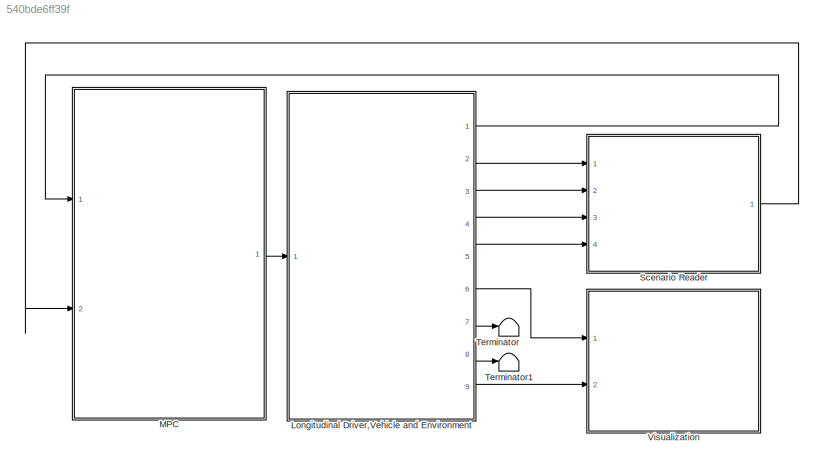
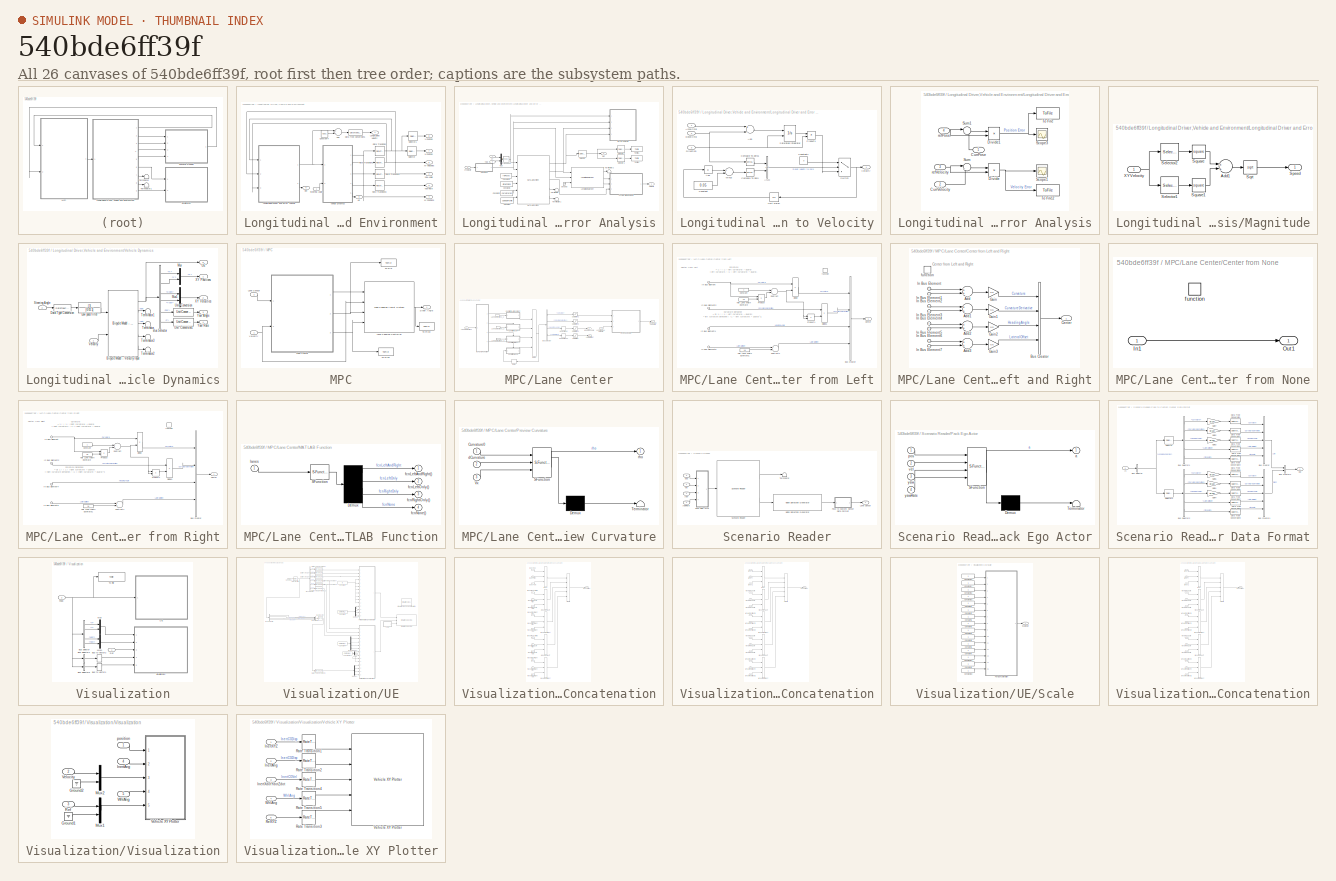
[diagram: thumbnail index - all 26 canvases of the model, root first then tree order]
MODEL slx_540bde6ff39f
KIND model
CONFIG AbsTol = auto
CONFIG EnableMultiTasking = off
CONFIG FixedStep = auto
CONFIG MaxStep = auto
CONFIG MinStep = auto
CONFIG RelTol = 1e-3
CONFIG SampleTimeConstraint = Unconstrained
CONFIG Solver = VariableStepAuto
CONFIG SolverName = VariableStepAuto
CONFIG StartTime = 0.0
CONFIG StopTime = 45.5
BLOCK [SubSystem] Longitudinal Driver,Vehicle and Environment
  Ports = [1, 9]
  RequestExecContextInheritance = off
BLOCK [Sum] Longitudinal Driver,Vehicle and Environment/Add
  InputSameDT = off
  OutDataTypeStr = Inherit: Inherit via internal rule
  Ports = [2, 1]
  SaturateOnIntegerOverflow = off
BLOCK [Constant] Longitudinal Driver,Vehicle and Environment/Constant4
  SampleTime = Ts
  Value = 0.001
BLOCK [DataTypeConversion] Longitudinal Driver,Vehicle and Environment/Data Type Conversion1
  RndMeth = Floor
  SaturateOnIntegerOverflow = off
BLOCK [SubSystem] Longitudinal Driver,Vehicle and Environment/Longitudinal Driver and Error Analysis
  Ports = [3, 2]
  RequestExecContextInheritance = off
BLOCK [SubSystem] Longitudinal Driver,Vehicle and Environment/Longitudinal Driver and Error Analysis/Acceleration to Velocity
  Ports = [3, 1]
  RequestExecContextInheritance = off
  TreatAsAtomicUnit = on
BLOCK [Logic] Longitudinal Driver,Vehicle and Environment/Longitudinal Driver and Error Analysis/Acceleration to Velocity/AND
  AllPortsSameDT = off
  IconShape = distinctive
  OutDataTypeStr = boolean
  Ports = [2, 1]
BLOCK [Abs] Longitudinal Driver,Vehicle and Environment/Longitudinal Driver and Error Analysis/Acceleration to Velocity/Abs
  SaturateOnIntegerOverflow = off
BLOCK [Inport] Longitudinal Driver,Vehicle and Environment/Longitudinal Driver and Error Analysis/Acceleration to Velocity/AccelCmd
  IconDisplay = Port number
  PortDimensions = [1 1]
BLOCK [Sum] Longitudinal Driver,Vehicle and Environment/Longitudinal Driver and Error Analysis/Acceleration to Velocity/Add
  InputSameDT = off
  Inputs = +-
  OutDataTypeStr = Inherit: Inherit via internal rule
  Ports = [2, 1]
  SaturateOnIntegerOverflow = off
BLOCK [Reference] Longitudinal Driver,Vehicle and Environment/Longitudinal Driver and Error Analysis/Acceleration to Velocity/Compare To Zero  REF=simulink/Logic and Bit
Operations/Compare
To Zero
  Ports = [1, 1]
  SourceBlock = simulink/Logic and Bit\nOperations/Compare\nTo Zero
  SourceProductBaseCode = SL
  SourceProductName = Simulink
  SourceType = Compare To Zero
BLOCK [Reference] Longitudinal Driver,Vehicle and Environment/Longitudinal Driver and Error Analysis/Acceleration to Velocity/Compare To Zero1  REF=simulink/Logic and Bit
Operations/Compare
To Zero
  Ports = [1, 1]
  SourceBlock = simulink/Logic and Bit\nOperations/Compare\nTo Zero
  SourceProductBaseCode = SL
  SourceProductName = Simulink
  SourceType = Compare To Zero
BLOCK [Constant] Longitudinal Driver,Vehicle and Environment/Longitudinal Driver and Error Analysis/Acceleration to Velocity/Constant
  Value = 0.05
BLOCK [Constant] Longitudinal Driver,Vehicle and Environment/Longitudinal Driver and Error Analysis/Acceleration to Velocity/Constant1
  SampleTime = Ts
  Value = 0
BLOCK [Inport] Longitudinal Driver,Vehicle and Environment/Longitudinal Driver and Error Analysis/Acceleration to Velocity/DecelCmd
  IconDisplay = Port number
  Port = 2
  PortDimensions = [1 1]
BLOCK [Inport] Longitudinal Driver,Vehicle and Environment/Longitudinal Driver and Error Analysis/Acceleration to Velocity/Direction
  IconDisplay = Port number
  Port = 3
BLOCK [Sum] Longitudinal Driver,Vehicle and Environment/Longitudinal Driver and Error Analysis/Acceleration to Velocity/Minus
  InputSameDT = off
  Inputs = +-
  OutDataTypeStr = Inherit: Inherit via internal rule
  Ports = [2, 1]
  SaturateOnIntegerOverflow = off
BLOCK [Product] Longitudinal Driver,Vehicle and Environment/Longitudinal Driver and Error Analysis/Acceleration to Velocity/Product1
  InputSameDT = off
  OutDataTypeStr = Inherit: Inherit via internal rule
  Ports = [2, 1]
  RndMeth = Floor
  SaturateOnIntegerOverflow = off
BLOCK [Integrator] Longitudinal Driver,Vehicle and Environment/Longitudinal Driver and Error Analysis/Acceleration to Velocity/Saturated integrator
  AbsoluteTolerance = 1e-3
  ExternalReset = either
  LimitOutput = on
  LowerSaturationLimit = 0
  Ports = [2, 1]
  ZeroCross = off
BLOCK [Switch] Longitudinal Driver,Vehicle and Environment/Longitudinal Driver and Error Analysis/Acceleration to Velocity/Switch
  Criteria = u2 > Threshold
  InputSameDT = off
  SaturateOnIntegerOverflow = off
BLOCK [UnitDelay] Longitudinal Driver,Vehicle and Environment/Longitudinal Driver and Error Analysis/Acceleration to Velocity/Unit Delay
  HasFrameUpgradeWarning = on
  InitialCondition = speedProfile(1)
  SampleTime = Ts
BLOCK [Outport] Longitudinal Driver,Vehicle and Environment/Longitudinal Driver and Error Analysis/Acceleration to Velocity/Velocity
  IconDisplay = Port number
  VectorParamsAs1DForOutWhenUnconnected = off
BLOCK [Constant] Longitudinal Driver,Vehicle and Environment/Longitudinal Driver and Error Analysis/Constant
  SampleTime = Ts
  Value = speedProfile
BLOCK [Constant] Longitudinal Driver,Vehicle and Environment/Longitudinal Driver and Error Analysis/Constant1
  SampleTime = Ts
  Value = directions
BLOCK [Constant] Longitudinal Driver,Vehicle and Environment/Longitudinal Driver and Error Analysis/Constant2
  SampleTime = Ts
  Value = curvatures
BLOCK [Constant] Longitudinal Driver,Vehicle and Environment/Longitudinal Driver and Error Analysis/Constant3
  SampleTime = Ts
  Value = refPoses
BLOCK [SubSystem] Longitudinal Driver,Vehicle and Environment/Longitudinal Driver and Error Analysis/Error Analysis
  Ports = [4]
  RequestExecContextInheritance = off
BLOCK [Inport] Longitudinal Driver,Vehicle and Environment/Longitudinal Driver and Error Analysis/Error Analysis/CurrPose
  IconDisplay = Port number
BLOCK [Inport] Longitudinal Driver,Vehicle and Environment/Longitudinal Driver and Error Analysis/Error Analysis/CurrVelocity
  IconDisplay = Port number
  Port = 2
BLOCK [Product] Longitudinal Driver,Vehicle and Environment/Longitudinal Driver and Error Analysis/Error Analysis/Divide
  InputSameDT = off
  Inputs = */
  OutDataTypeStr = Inherit: Inherit via internal rule
  Ports = [2, 1]
BLOCK [Product] Longitudinal Driver,Vehicle and Environment/Longitudinal Driver and Error Analysis/Error Analysis/Divide1
  InputSameDT = off
  Inputs = */
  OutDataTypeStr = Inherit: Inherit via internal rule
  Ports = [2, 1]
BLOCK [Scope] Longitudinal Driver,Vehicle and Environment/Longitudinal Driver and Error Analysis/Error Analysis/Scope1
  Floating = off
  NumInputPorts = 1
  Ports = [1]
  ScopeSpecificationString = Simulink.scopes.TimeScopeBlockCfg('CurrentConfiguration', extmgr.ConfigurationSet(extmgr.Configuration('Core','General UI',true),extmgr.Configuration('Core','Source UI',true),extmgr.Configuration('Sources','WiredSimulink',true,'DataLoggingVariableName','ScopeData1'),extmgr.Configuration('Visuals','Time Domain',true,'SerializedDisplays',{struct('MinYLimReal','-0.13974','MaxYLimReal','1.12664','YLab...<+1423ch>
BLOCK [Scope] Longitudinal Driver,Vehicle and Environment/Longitudinal Driver and Error Analysis/Error Analysis/Scope3
  Floating = off
  NumInputPorts = 1
  Ports = [1]
  ScopeSpecificationString = Simulink.scopes.TimeScopeBlockCfg('CurrentConfiguration', extmgr.ConfigurationSet(extmgr.Configuration('Core','General UI',true),extmgr.Configuration('Core','Source UI',true),extmgr.Configuration('Sources','WiredSimulink',true,'DataLoggingVariableName','ScopeData2'),extmgr.Configuration('Visuals','Time Domain',true,'SerializedDisplays',{struct('MinYLimReal','-29.911','MaxYLimReal','3.40845','YLabe...<+1466ch>
BLOCK [Sum] Longitudinal Driver,Vehicle and Environment/Longitudinal Driver and Error Analysis/Error Analysis/Sum
  IconShape = round
  InputSameDT = off
  Inputs = |+-
  OutDataTypeStr = Inherit: Inherit via internal rule
  Ports = [2, 1]
  SaturateOnIntegerOverflow = off
BLOCK [Sum] Longitudinal Driver,Vehicle and Environment/Longitudinal Driver and Error Analysis/Error Analysis/Sum1
  IconShape = round
  InputSameDT = off
  Inputs = |+-
  OutDataTypeStr = Inherit: Inherit via internal rule
  Ports = [2, 1]
  SaturateOnIntegerOverflow = off
BLOCK [ToFile] Longitudinal Driver,Vehicle and Environment/Longitudinal Driver and Error Analysis/Error Analysis/To File
  Filename = positionerror
  MatrixName = positionerror
  Ports = [1]
  SaveFormat = Timeseries
BLOCK [ToFile] Longitudinal Driver,Vehicle and Environment/Longitudinal Driver and Error Analysis/Error Analysis/To File2
  Filename = VelocityError
  MatrixName = VelocityError
  Ports = [1]
  SaveFormat = Timeseries
BLOCK [Inport] Longitudinal Driver,Vehicle and Environment/Longitudinal Driver and Error Analysis/Error Analysis/refPose
  IconDisplay = Port number
  Port = 4
BLOCK [Inport] Longitudinal Driver,Vehicle and Environment/Longitudinal Driver and Error Analysis/Error Analysis/refVelocity
  IconDisplay = Port number
  Port = 3
BLOCK [Ground] Longitudinal Driver,Vehicle and Environment/Longitudinal Driver and Error Analysis/Ground
BLOCK [Reference] Longitudinal Driver,Vehicle and Environment/Longitudinal Driver and Error Analysis/Longitudinal Driver  REF=autolibshared/Longitudinal Driver
  Ports = [3, 3]
  SourceBlock = autolibshared/Longitudinal Driver
  SourceProductBaseCode = PW
  SourceProductName = Powertrain Blockset
  SourceType = Longitudinal Driver
BLOCK [MATLABSystem] Longitudinal Driver,Vehicle and Environment/Longitudinal Driver and Error Analysis/MATLAB System
  HasResetOutput = on
  MaskDisplay = disp(['Helper' char(10) 'Path' char(10) 'Analyzer']);\nport_label('input',1,'CurrPose');\nport_label('input',2,'CurrVelocity');\nport_label('input',3,'RefPoses');\nport_label('input',4,'Directions');\nport_label('input',5,'Curvatures');\nport_label('input',6,'SpeedProfile');\nport_label('output',1,'RefPose');\nport_label('output',2,'RefVelocity');\nport_label('output',3,'Direction');\nport_label('output',4,...<+45ch>
  MaskType = HelperPathAnalyzer
  Ports = [6, 5]
  SimulateUsing = Interpreted execution
  System = HelperPathAnalyzer
  Wheelbase = wheelbase
BLOCK [SubSystem] Longitudinal Driver,Vehicle and Environment/Longitudinal Driver and Error Analysis/Magnitude
  Ports = [1, 1]
  RequestExecContextInheritance = off
BLOCK [Sum] Longitudinal Driver,Vehicle and Environment/Longitudinal Driver and Error Analysis/Magnitude/Add1
  InputSameDT = off
  OutDataTypeStr = Inherit: Inherit via internal rule
  Ports = [2, 1]
  SaturateOnIntegerOverflow = off
BLOCK [Selector] Longitudinal Driver,Vehicle and Environment/Longitudinal Driver and Error Analysis/Magnitude/Selector1
  IndexOptions = Index vector (dialog)
  Indices = [2]
  InputPortWidth = 2
  OutputSizes = 1
  Ports = [1, 1]
BLOCK [Selector] Longitudinal Driver,Vehicle and Environment/Longitudinal Driver and Error Analysis/Magnitude/Selector2
  IndexOptions = Index vector (dialog)
  Indices = [1]
  InputPortWidth = 2
  OutputSizes = 1
  Ports = [1, 1]
BLOCK [Outport] Longitudinal Driver,Vehicle and Environment/Longitudinal Driver and Error Analysis/Magnitude/Speed
  IconDisplay = Port number
BLOCK [Sqrt] Longitudinal Driver,Vehicle and Environment/Longitudinal Driver and Error Analysis/Magnitude/Sqrt
BLOCK [Math] Longitudinal Driver,Vehicle and Environment/Longitudinal Driver and Error Analysis/Magnitude/Square
  Operator = square
  Ports = [1, 1]
  SignedPower = off
BLOCK [Math] Longitudinal Driver,Vehicle and Environment/Longitudinal Driver and Error Analysis/Magnitude/Square1
  Operator = square
  Ports = [1, 1]
  SignedPower = off
BLOCK [Inport] Longitudinal Driver,Vehicle and Environment/Longitudinal Driver and Error Analysis/Magnitude/XYVelocity
  IconDisplay = Port number
BLOCK [Mux] Longitudinal Driver,Vehicle and Environment/Longitudinal Driver and Error Analysis/Mux
  DisplayOption = bar
  Inputs = 2
  Ports = [2, 1]
BLOCK [Outport] Longitudinal Driver,Vehicle and Environment/Longitudinal Driver and Error Analysis/Ref
  IconDisplay = Port number
  Port = 2
BLOCK [Selector] Longitudinal Driver,Vehicle and Environment/Longitudinal Driver and Error Analysis/Selector
  IndexOptions = Index vector (dialog)
  Indices = [1 2]
  InputPortWidth = 3
  OutputSizes = 1
  Ports = [1, 1]
BLOCK [Selector] Longitudinal Driver,Vehicle and Environment/Longitudinal Driver and Error Analysis/Selector1
  IndexOptions = Index vector (dialog)
  Indices = [2]
  InputPortWidth = 2
  OutputSizes = 1
  Ports = [1, 1]
BLOCK [Selector] Longitudinal Driver,Vehicle and Environment/Longitudinal Driver and Error Analysis/Selector2
  IndexOptions = Index vector (dialog)
  Indices = [1]
  InputPortWidth = 2
  OutputSizes = 1
  Ports = [1, 1]
BLOCK [Terminator] Longitudinal Driver,Vehicle and Environment/Longitudinal Driver and Error Analysis/Terminator
BLOCK [Terminator] Longitudinal Driver,Vehicle and Environment/Longitudinal Driver and Error Analysis/Terminator1
BLOCK [Terminator] Longitudinal Driver,Vehicle and Environment/Longitudinal Driver and Error Analysis/Terminator2
BLOCK [ToFile] Longitudinal Driver,Vehicle and Environment/Longitudinal Driver and Error Analysis/To File1
  Filename = xref.mat
  MatrixName = xref
  Ports = [1]
BLOCK [ToFile] Longitudinal Driver,Vehicle and Environment/Longitudinal Driver and Error Analysis/To File2
  Filename = yref.mat
  MatrixName = yref
  Ports = [1]
BLOCK [Math] Longitudinal Driver,Vehicle and Environment/Longitudinal Driver and Error Analysis/Transpose
  Operator = transpose
  Ports = [1, 1]
  SignedPower = off
BLOCK [Outport] Longitudinal Driver,Vehicle and Environment/Longitudinal Driver and Error Analysis/Velocity
  IconDisplay = Port number
BLOCK [Inport] Longitudinal Driver,Vehicle and Environment/Longitudinal Driver and Error Analysis/XY
  IconDisplay = Port number
BLOCK [Inport] Longitudinal Driver,Vehicle and Environment/Longitudinal Driver and Error Analysis/XYVelocity
  IconDisplay = Port number
  Port = 3
BLOCK [Inport] Longitudinal Driver,Vehicle and Environment/Longitudinal Driver and Error Analysis/Yaw
  IconDisplay = Port number
  Port = 2
BLOCK [Outport] Longitudinal Driver,Vehicle and Environment/Longitudinal Velocity
  IconDisplay = Port number
  OutDataTypeStr = single
  Unit = m/s
  VectorParamsAs1DForOutWhenUnconnected = off
BLOCK [RateTransition] Longitudinal Driver,Vehicle and Environment/Rate Transition
  InitialCondition = [x0,y0]
  OutPortSampleTime = Ts
BLOCK [RateTransition] Longitudinal Driver,Vehicle and Environment/Rate Transition1
  InitialCondition = speedVector(1,1:2)
  OutPortSampleTime = Ts
BLOCK [RateTransition] Longitudinal Driver,Vehicle and Environment/Rate Transition2
  OutPortSampleTime = Ts
BLOCK [RateTransition] Longitudinal Driver,Vehicle and Environment/Rate Transition3
  OutPortSampleTime = Ts
BLOCK [Outport] Longitudinal Driver,Vehicle and Environment/Ref
  IconDisplay = Port number
  Port = 6
BLOCK [Selector] Longitudinal Driver,Vehicle and Environment/Selector
  IndexOptions = Index vector (dialog)
  Indices = [1]
  InputPortWidth = 2
  OutputSizes = 1
  Ports = [1, 1]
BLOCK [Selector] Longitudinal Driver,Vehicle and Environment/Selector1
  IndexOptions = Index vector (dialog)
  Indices = [2]
  InputPortWidth = 2
  OutputSizes = 1
  Ports = [1, 1]
BLOCK [Inport] Longitudinal Driver,Vehicle and Environment/Steering Angle
  IconDisplay = Port number
  Unit = rad
BLOCK [Outport] Longitudinal Driver,Vehicle and Environment/UE 
  IconDisplay = Port number
  Port = 9
BLOCK [SubSystem] Longitudinal Driver,Vehicle and Environment/Vehicle Dynamics
  Ports = [2, 5]
  RequestExecContextInheritance = off
  VariantControl = VariantVDBS
BLOCK [Reference] Longitudinal Driver,Vehicle and Environment/Vehicle Dynamics/Bicycle Model - Velocity Input  REF=autolibshared/Bicycle Model - Velocity Input
  Ports = [2, 5]
  SourceBlock = autolibshared/Bicycle Model - Velocity Input
  SourceProductBaseCode = PW
  SourceProductName = Powertrain Blockset
  SourceType = Vehicle Body 3DOF Lateral
BLOCK [BusSelector] Longitudinal Driver,Vehicle and Environment/Vehicle Dynamics/Bus Selector
  OutputAsBus = off
  OutputSignals = InertFrm.Cg.Disp.X,InertFrm.Cg.Disp.Y,InertFrm.Cg.Vel.Xdot,InertFrm.Cg.Vel.Ydot,InertFrm.Cg.Ang.psi,BdyFrm.Cg.AngVel.r
  Ports = [1, 6]
BLOCK [DataTypeConversion] Longitudinal Driver,Vehicle and Environment/Vehicle Dynamics/Data Type Conversion
  RndMeth = Floor
  SaturateOnIntegerOverflow = off
BLOCK [TransferFcn] Longitudinal Driver,Vehicle and Environment/Vehicle Dynamics/Low pass filter
  Denominator = [0.01 1]
BLOCK [Mux] Longitudinal Driver,Vehicle and Environment/Vehicle Dynamics/Mux
  DisplayOption = bar
  Inputs = 2
  Ports = [2, 1]
BLOCK [Mux] Longitudinal Driver,Vehicle and Environment/Vehicle Dynamics/Mux1
  DisplayOption = bar
  Inputs = 2
  Ports = [2, 1]
BLOCK [Inport] Longitudinal Driver,Vehicle and Environment/Vehicle Dynamics/Steering Angle
  IconDisplay = Port number
  Port = 2
BLOCK [Terminator] Longitudinal Driver,Vehicle and Environment/Vehicle Dynamics/Terminator
BLOCK [Terminator] Longitudinal Driver,Vehicle and Environment/Vehicle Dynamics/Terminator1
BLOCK [Terminator] Longitudinal Driver,Vehicle and Environment/Vehicle Dynamics/Terminator2
BLOCK [Terminator] Longitudinal Driver,Vehicle and Environment/Vehicle Dynamics/Terminator3
BLOCK [Outport] Longitudinal Driver,Vehicle and Environment/Vehicle Dynamics/UE 
  IconDisplay = Port number
  Port = 5
BLOCK [UnitConversion] Longitudinal Driver,Vehicle and Environment/Vehicle Dynamics/Unit Conversion
  OutputType = Inherit: Inherit via back propagation
BLOCK [UnitConversion] Longitudinal Driver,Vehicle and Environment/Vehicle Dynamics/Unit Conversion1
  OutputType = Inherit: Inherit via back propagation
BLOCK [Inport] Longitudinal Driver,Vehicle and Environment/Vehicle Dynamics/Velocity
  IconDisplay = Port number
BLOCK [Outport] Longitudinal Driver,Vehicle and Environment/Vehicle Dynamics/XY Positions
  IconDisplay = Port number
  Unit = m
  VectorParamsAs1DForOutWhenUnconnected = off
BLOCK [Outport] Longitudinal Driver,Vehicle and Environment/Vehicle Dynamics/XY Velocities
  IconDisplay = Port number
  Port = 2
  Unit = m/s
  VectorParamsAs1DForOutWhenUnconnected = off
BLOCK [Outport] Longitudinal Driver,Vehicle and Environment/Vehicle Dynamics/Yaw Angle
  IconDisplay = Port number
  Port = 3
  Unit = deg
  VectorParamsAs1DForOutWhenUnconnected = off
BLOCK [Outport] Longitudinal Driver,Vehicle and Environment/Vehicle Dynamics/Yaw Rate
  IconDisplay = Port number
  Port = 4
  Unit = degree/s
  VectorParamsAs1DForOutWhenUnconnected = off
BLOCK [Outport] Longitudinal Driver,Vehicle and Environment/X-Position
  IconDisplay = Port number
  Port = 7
BLOCK [Outport] Longitudinal Driver,Vehicle and Environment/XY Positions
  IconDisplay = Port number
  Port = 4
BLOCK [Outport] Longitudinal Driver,Vehicle and Environment/XY Velocities
  IconDisplay = Port number
  Port = 5
BLOCK [Outport] Longitudinal Driver,Vehicle and Environment/Y-Position
  IconDisplay = Port number
  Port = 8
BLOCK [Outport] Longitudinal Driver,Vehicle and Environment/Yaw Angle
  IconDisplay = Port number
  Port = 2
BLOCK [Outport] Longitudinal Driver,Vehicle and Environment/Yaw Rate
  IconDisplay = Port number
  Port = 3
BLOCK [SubSystem] MPC
  Ports = [2, 1]
  RequestExecContextInheritance = off
BLOCK [SubSystem] MPC/Lane Center
  Ports = [2, 3]
  RequestExecContextInheritance = off
BLOCK [BusSelector] MPC/Lane Center/Bus Selector
  OutputAsBus = off
  OutputSignals = Curvature,CurvatureDerivative,HeadingAngle,LateralOffset
  Ports = [1, 4]
BLOCK [SubSystem] MPC/Lane Center/Center from Left
  Ports = [1, 1, 0, 1]
  RequestExecContextInheritance = off
  TreatAsAtomicUnit = on
BLOCK [SubSystem] MPC/Lane Center/Center from Left and Right
  Ports = [1, 1, 0, 1]
  RequestExecContextInheritance = off
  TreatAsAtomicUnit = on
BLOCK [Sum] MPC/Lane Center/Center from Left and Right/Add
  InputSameDT = off
  OutDataTypeStr = Inherit: Inherit via internal rule
  Ports = [2, 1]
  SaturateOnIntegerOverflow = off
BLOCK [Sum] MPC/Lane Center/Center from Left and Right/Add1
  InputSameDT = off
  OutDataTypeStr = Inherit: Inherit via internal rule
  Ports = [2, 1]
  SaturateOnIntegerOverflow = off
BLOCK [Sum] MPC/Lane Center/Center from Left and Right/Add2
  InputSameDT = off
  OutDataTypeStr = Inherit: Inherit via internal rule
  Ports = [2, 1]
  SaturateOnIntegerOverflow = off
BLOCK [Sum] MPC/Lane Center/Center from Left and Right/Add3
  InputSameDT = off
  OutDataTypeStr = Inherit: Inherit via internal rule
  Ports = [2, 1]
  SaturateOnIntegerOverflow = off
BLOCK [BusCreator] MPC/Lane Center/Center from Left and Right/Bus Creator
  DisplayOption = bar
  InheritFromInputs = on
  Inputs = 4
  Ports = [4, 1]
BLOCK [Outport] MPC/Lane Center/Center from Left and Right/Center
  IconDisplay = Port number
  VectorParamsAs1DForOutWhenUnconnected = off
BLOCK [Gain] MPC/Lane Center/Center from Left and Right/Gain
  Gain = 0.5
  OutDataTypeStr = Inherit: Inherit via internal rule
  ParamDataTypeStr = Inherit: Inherit via internal rule
  SaturateOnIntegerOverflow = off
BLOCK [Gain] MPC/Lane Center/Center from Left and Right/Gain1
  Gain = 0.5
  OutDataTypeStr = Inherit: Inherit via internal rule
  ParamDataTypeStr = Inherit: Inherit via internal rule
  SaturateOnIntegerOverflow = off
BLOCK [Gain] MPC/Lane Center/Center from Left and Right/Gain2
  Gain = 0.5
  OutDataTypeStr = Inherit: Inherit via internal rule
  ParamDataTypeStr = Inherit: Inherit via internal rule
  SaturateOnIntegerOverflow = off
BLOCK [Gain] MPC/Lane Center/Center from Left and Right/Gain3
  Gain = 0.5
  OutDataTypeStr = Inherit: Inherit via internal rule
  ParamDataTypeStr = Inherit: Inherit via internal rule
  SaturateOnIntegerOverflow = off
BLOCK [Inport] MPC/Lane Center/Center from Left and Right/In Bus Element
  IconDisplay = Port number
BLOCK [Inport] MPC/Lane Center/Center from Left and Right/In Bus Element1
  IconDisplay = Port number
BLOCK [Inport] MPC/Lane Center/Center from Left and Right/In Bus Element2
  IconDisplay = Port number
BLOCK [Inport] MPC/Lane Center/Center from Left and Right/In Bus Element3
  IconDisplay = Port number
BLOCK [Inport] MPC/Lane Center/Center from Left and Right/In Bus Element4
  IconDisplay = Port number
BLOCK [Inport] MPC/Lane Center/Center from Left and Right/In Bus Element5
  IconDisplay = Port number
BLOCK [Inport] MPC/Lane Center/Center from Left and Right/In Bus Element6
  IconDisplay = Port number
BLOCK [Inport] MPC/Lane Center/Center from Left and Right/In Bus Element7
  IconDisplay = Port number
BLOCK [TriggerPort] MPC/Lane Center/Center from Left and Right/function
  Ports = []
  StatesWhenEnabling = held
  TriggerType = function-call
  VariantControl = Variant
BLOCK [BusCreator] MPC/Lane Center/Center from Left/Bus Creator
  DisplayOption = bar
  InheritFromInputs = on
  Inputs = 4
  Ports = [4, 1]
BLOCK [Outport] MPC/Lane Center/Center from Left/Center
  IconDisplay = Port number
  VectorParamsAs1DForOutWhenUnconnected = off
BLOCK [Constant] MPC/Lane Center/Center from Left/Constant
  OutDataTypeStr = Inherit: Inherit via back propagation
BLOCK [Product] MPC/Lane Center/Center from Left/Divide
  InputSameDT = off
  Inputs = */
  OutDataTypeStr = Inherit: Inherit via internal rule
  Ports = [2, 1]
  RndMeth = Floor
  SaturateOnIntegerOverflow = off
BLOCK [Product] MPC/Lane Center/Center from Left/Divide1
  InputSameDT = off
  Inputs = */
  OutDataTypeStr = Inherit: Inherit via internal rule
  Ports = [2, 1]
  RndMeth = Floor
  SaturateOnIntegerOverflow = off
BLOCK [Constant] MPC/Lane Center/Center from Left/Half Lane Width Estimate
  OutDataTypeStr = Inherit: Inherit via back propagation
  Value = 1.8
BLOCK [Constant] MPC/Lane Center/Center from Left/Half Lane Width Estimate1
  OutDataTypeStr = Inherit: Inherit via back propagation
  Value = 1.8
BLOCK [Inport] MPC/Lane Center/Center from Left/In Bus Element
  IconDisplay = Port number
BLOCK [Inport] MPC/Lane Center/Center from Left/In Bus Element2
  IconDisplay = Port number
BLOCK [Inport] MPC/Lane Center/Center from Left/In Bus Element4
  IconDisplay = Port number
BLOCK [Inport] MPC/Lane Center/Center from Left/In Bus Element6
  IconDisplay = Port number
BLOCK [Product] MPC/Lane Center/Center from Left/Product
  InputSameDT = off
  OutDataTypeStr = Inherit: Inherit via internal rule
  Ports = [2, 1]
  RndMeth = Floor
  SaturateOnIntegerOverflow = off
BLOCK [Product] MPC/Lane Center/Center from Left/Product1
  InputSameDT = off
  OutDataTypeStr = Inherit: Inherit via internal rule
  Ports = [2, 1]
  RndMeth = Floor
  SaturateOnIntegerOverflow = off
BLOCK [Sum] MPC/Lane Center/Center from Left/Subtract
  InputSameDT = off
  Inputs = +-
  OutDataTypeStr = Inherit: Inherit via internal rule
  Ports = [2, 1]
  SaturateOnIntegerOverflow = off
BLOCK [Sum] MPC/Lane Center/Center from Left/Subtract1
  InputSameDT = off
  Inputs = +-
  OutDataTypeStr = Inherit: Inherit via internal rule
  Ports = [2, 1]
  SaturateOnIntegerOverflow = off
BLOCK [TriggerPort] MPC/Lane Center/Center from Left/function
  Ports = []
  StatesWhenEnabling = held
  TriggerType = function-call
  VariantControl = Variant
BLOCK [SubSystem] MPC/Lane Center/Center from None
  Ports = [1, 1, 0, 1]
  RequestExecContextInheritance = off
  TreatAsAtomicUnit = on
BLOCK [Inport] MPC/Lane Center/Center from None/In1
  IconDisplay = Port number
BLOCK [Outport] MPC/Lane Center/Center from None/Out1
  IconDisplay = Port number
  VectorParamsAs1DForOutWhenUnconnected = off
BLOCK [TriggerPort] MPC/Lane Center/Center from None/function
  Ports = []
  StatesWhenEnabling = held
  TriggerType = function-call
  VariantControl = Variant
BLOCK [SubSystem] MPC/Lane Center/Center from Right
  Ports = [1, 1, 0, 1]
  RequestExecContextInheritance = off
  TreatAsAtomicUnit = on
BLOCK [BusCreator] MPC/Lane Center/Center from Right/Bus Creator
  DisplayOption = bar
  InheritFromInputs = on
  Inputs = 4
  Ports = [4, 1]
BLOCK [Outport] MPC/Lane Center/Center from Right/Center
  IconDisplay = Port number
  VectorParamsAs1DForOutWhenUnconnected = off
BLOCK [Constant] MPC/Lane Center/Center from Right/Constant
  OutDataTypeStr = Inherit: Inherit via back propagation
BLOCK [Product] MPC/Lane Center/Center from Right/Divide
  InputSameDT = off
  Inputs = */
  OutDataTypeStr = Inherit: Inherit via internal rule
  Ports = [2, 1]
  RndMeth = Floor
  SaturateOnIntegerOverflow = off
BLOCK [Product] MPC/Lane Center/Center from Right/Divide1
  InputSameDT = off
  Inputs = */
  OutDataTypeStr = Inherit: Inherit via internal rule
  Ports = [2, 1]
  RndMeth = Floor
  SaturateOnIntegerOverflow = off
BLOCK [Constant] MPC/Lane Center/Center from Right/Half Lane Width Estimate
  OutDataTypeStr = Inherit: Inherit via back propagation
  Value = 1.8
BLOCK [Constant] MPC/Lane Center/Center from Right/Half Lane Width Estimate1
  OutDataTypeStr = Inherit: Inherit via back propagation
  Value = 1.8
BLOCK [Inport] MPC/Lane Center/Center from Right/In Bus Element
  IconDisplay = Port number
BLOCK [Inport] MPC/Lane Center/Center from Right/In Bus Element2
  IconDisplay = Port number
BLOCK [Inport] MPC/Lane Center/Center from Right/In Bus Element4
  IconDisplay = Port number
BLOCK [Inport] MPC/Lane Center/Center from Right/In Bus Element6
  IconDisplay = Port number
BLOCK [Product] MPC/Lane Center/Center from Right/Product
  InputSameDT = off
  OutDataTypeStr = Inherit: Inherit via internal rule
  Ports = [2, 1]
  RndMeth = Floor
  SaturateOnIntegerOverflow = off
BLOCK [Product] MPC/Lane Center/Center from Right/Product1
  InputSameDT = off
  OutDataTypeStr = Inherit: Inherit via internal rule
  Ports = [2, 1]
  RndMeth = Floor
  SaturateOnIntegerOverflow = off
BLOCK [Sum] MPC/Lane Center/Center from Right/Subtract
  InputSameDT = off
  OutDataTypeStr = Inherit: Inherit via internal rule
  Ports = [2, 1]
  SaturateOnIntegerOverflow = off
BLOCK [Sum] MPC/Lane Center/Center from Right/Subtract1
  InputSameDT = off
  OutDataTypeStr = Inherit: Inherit via internal rule
  Ports = [2, 1]
  SaturateOnIntegerOverflow = off
BLOCK [TriggerPort] MPC/Lane Center/Center from Right/function
  Ports = []
  StatesWhenEnabling = held
  TriggerType = function-call
  VariantControl = Variant
BLOCK [Delay] MPC/Lane Center/Delay
  DelayLength = 1
  InputPortMap = u0
  Ports = [1, 1]
BLOCK [Outport] MPC/Lane Center/Heading Angle
  IconDisplay = Port number
  Port = 3
  VectorParamsAs1DForOutWhenUnconnected = off
BLOCK [Inport] MPC/Lane Center/Lane Detections
  IconDisplay = Port number
BLOCK [InportShadow] MPC/Lane Center/Lane Detections_1
  IconDisplay = Port number
BLOCK [InportShadow] MPC/Lane Center/Lane Detections_2
  IconDisplay = Port number
BLOCK [InportShadow] MPC/Lane Center/Lane Detections_3
  IconDisplay = Port number
BLOCK [Outport] MPC/Lane Center/Lateral Offset
  IconDisplay = Port number
  Port = 2
  VectorParamsAs1DForOutWhenUnconnected = off
BLOCK [Inport] MPC/Lane Center/Longitudinal Velocity
  IconDisplay = Port number
  OutDataTypeStr = single
  Port = 2
BLOCK [SubSystem] MPC/Lane Center/MATLAB Function
  ErrorFcn = Stateflow.Translate.translate
  PermitHierarchicalResolution = ExplicitOnly
  Ports = [1, 4]
  RequestExecContextInheritance = off
  SFBlockType = MATLAB Function
  TreatAsAtomicUnit = on
BLOCK [Demux] MPC/Lane Center/MATLAB Function/ Demux 
  Ports = [1, 4]
BLOCK [S-Function] MPC/Lane Center/MATLAB Function/ SFunction 
  EnableBusSupport = on
  FunctionName = sf_sfun
  PortCounts = [1 1]
  Ports = [1, 1]
  SFcnIsStateOwnerBlock = off
  SFunctionDeploymentMode = off
  Tag = Stateflow S-Function 9
BLOCK [Outport] MPC/Lane Center/MATLAB Function/fcnLeftAndRight()
  IconDisplay = Port number
  VectorParamsAs1DForOutWhenUnconnected = off
BLOCK [Outport] MPC/Lane Center/MATLAB Function/fcnLeftOnly()
  IconDisplay = Port number
  Port = 2
  VectorParamsAs1DForOutWhenUnconnected = off
BLOCK [Outport] MPC/Lane Center/MATLAB Function/fcnNone()
  IconDisplay = Port number
  Port = 4
  VectorParamsAs1DForOutWhenUnconnected = off
BLOCK [Outport] MPC/Lane Center/MATLAB Function/fcnRightOnly()
  IconDisplay = Port number
  Port = 3
  VectorParamsAs1DForOutWhenUnconnected = off
BLOCK [Inport] MPC/Lane Center/MATLAB Function/lanes
  IconDisplay = Port number
BLOCK [Merge] MPC/Lane Center/Merge
  Inputs = 4
  Ports = [4, 1]
BLOCK [SubSystem] MPC/Lane Center/Preview Curvature
  ErrorFcn = Stateflow.Translate.translate
  PermitHierarchicalResolution = ExplicitOnly
  Ports = [3, 1]
  RequestExecContextInheritance = off
  SFBlockType = MATLAB Function
  SystemSampleTime = Ts
  TreatAsAtomicUnit = on
BLOCK [Demux] MPC/Lane Center/Preview Curvature/ Demux 
  Outputs = 1
  Ports = [1, 1]
BLOCK [S-Function] MPC/Lane Center/Preview Curvature/ SFunction 
  EnableBusSupport = on
  FunctionName = sf_sfun
  Parameters = Ts
  PortCounts = [3 2]
  Ports = [3, 2]
  SFcnIsStateOwnerBlock = off
  SFunctionDeploymentMode = off
  Tag = Stateflow S-Function 10
BLOCK [Terminator] MPC/Lane Center/Preview Curvature/ Terminator 
BLOCK [Inport] MPC/Lane Center/Preview Curvature/Curvature0
  IconDisplay = Port number
BLOCK [Inport] MPC/Lane Center/Preview Curvature/Vx
  IconDisplay = Port number
  Port = 3
BLOCK [Inport] MPC/Lane Center/Preview Curvature/dCurvature
  IconDisplay = Port number
  Port = 2
BLOCK [Outport] MPC/Lane Center/Preview Curvature/rho
  IconDisplay = Port number
  VectorParamsAs1DForOutWhenUnconnected = off
BLOCK [Outport] MPC/Lane Center/Previewed Curvature
  IconDisplay = Port number
  VectorParamsAs1DForOutWhenUnconnected = off
BLOCK [Saturate] MPC/Lane Center/Saturation
  InputPortMap = u0
  Ports = [1, 1]
BLOCK [Saturate] MPC/Lane Center/Saturation1
  InputPortMap = u0
  LowerLimit = -0.6
  Ports = [1, 1]
  UpperLimit = 0.6
BLOCK [Saturate] MPC/Lane Center/Saturation2
  InputPortMap = u0
  LowerLimit = -0.15
  Ports = [1, 1]
  UpperLimit = 0.15
BLOCK [Saturate] MPC/Lane Center/Saturation3
  InputPortMap = u0
  LowerLimit = -0.06
  Ports = [1, 1]
  UpperLimit = 0.06
BLOCK [UnaryMinus] MPC/Lane Center/Unary Minus
BLOCK [UnaryMinus] MPC/Lane Center/Unary Minus1
BLOCK [Reference] MPC/Lane Keeping Controller  REF=mpcadaslib/Lane Keeping Assist System
  Ports = [4, 1]
  SourceBlock = mpcadaslib/Lane Keeping Assist System
  SourceProductBaseCode = MP
  SourceProductName = Model Predictive Control Toolbox
  SourceType = Lane Keeping Assist (LKA) System
BLOCK [Inport] MPC/Lane Sensor
  IconDisplay = Port number
  Port = 2
BLOCK [Outport] MPC/Steer Angle
  IconDisplay = Port number
BLOCK [ToFile] MPC/To File
  Filename = Latdev.mat
  MatrixName = Latdev
  Ports = [1]
  SaveFormat = Timeseries
BLOCK [ToFile] MPC/To File1
  Filename = relyaw.mat
  MatrixName = relyaw
  Ports = [1]
  SaveFormat = Timeseries
BLOCK [ToFile] MPC/To File2
  Filename = steer.mat
  MatrixName = steer
  Ports = [1]
  SaveFormat = Timeseries
BLOCK [Inport] MPC/Velocity
  IconDisplay = Port number
BLOCK [SubSystem] Scenario Reader
  Ports = [4, 1]
  RequestExecContextInheritance = off
BLOCK [Outport] Scenario Reader/Lane Sensor
  IconDisplay = Port number
BLOCK [SubSystem] Scenario Reader/Pack Ego Actor
  ErrorFcn = Stateflow.Translate.translate
  PermitHierarchicalResolution = ExplicitOnly
  Ports = [4, 1]
  RequestExecContextInheritance = off
  SFBlockType = MATLAB Function
  TreatAsAtomicUnit = on
BLOCK [Demux] Scenario Reader/Pack Ego Actor/ Demux 
  Outputs = 1
  Ports = [1, 1]
BLOCK [S-Function] Scenario Reader/Pack Ego Actor/ SFunction 
  EnableBusSupport = on
  FunctionName = sf_sfun
  PortCounts = [4 2]
  Ports = [4, 2]
  SFcnIsStateOwnerBlock = off
  SFunctionDeploymentMode = off
  Tag = Stateflow S-Function 5
BLOCK [Terminator] Scenario Reader/Pack Ego Actor/ Terminator 
BLOCK [Outport] Scenario Reader/Pack Ego Actor/a
  IconDisplay = Port number
  VectorParamsAs1DForOutWhenUnconnected = off
BLOCK [Inport] Scenario Reader/Pack Ego Actor/pos
  IconDisplay = Port number
BLOCK [Inport] Scenario Reader/Pack Ego Actor/vel
  IconDisplay = Port number
  Port = 2
BLOCK [Inport] Scenario Reader/Pack Ego Actor/yaw
  IconDisplay = Port number
  Port = 3
BLOCK [Inport] Scenario Reader/Pack Ego Actor/yawRate
  IconDisplay = Port number
  Port = 4
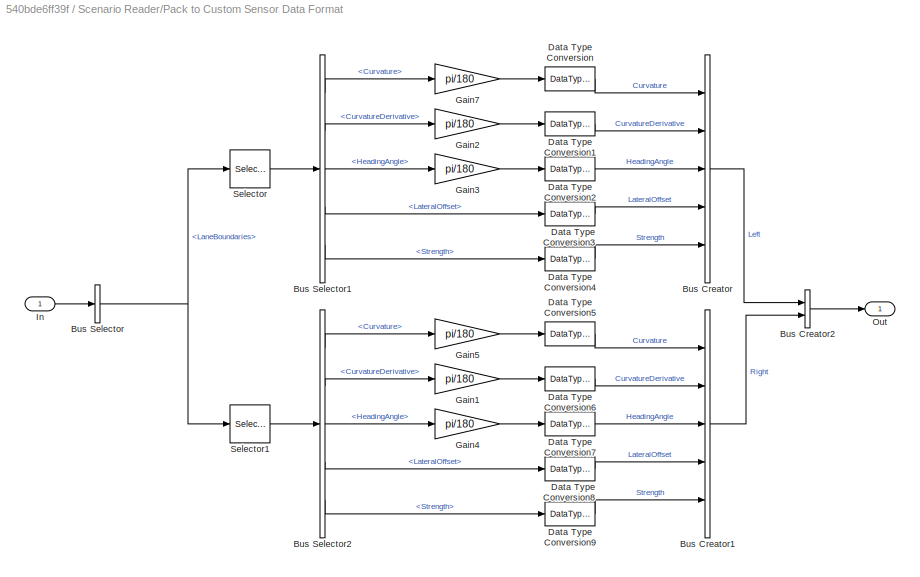
BLOCK [SubSystem] Scenario Reader/Pack to Custom Sensor Data Format
  Ports = [1, 1]
  RequestExecContextInheritance = off
BLOCK [BusCreator] Scenario Reader/Pack to Custom Sensor Data Format/Bus Creator
  DisplayOption = bar
  InheritFromInputs = off
  Inputs = 5
  OutDataTypeStr = Bus: LaneSensorBoundaries
  Ports = [5, 1]
BLOCK [BusCreator] Scenario Reader/Pack to Custom Sensor Data Format/Bus Creator1
  DisplayOption = bar
  InheritFromInputs = on
  Inputs = 5
  OutDataTypeStr = Bus: LaneSensorBoundaries
  Ports = [5, 1]
BLOCK [BusCreator] Scenario Reader/Pack to Custom Sensor Data Format/Bus Creator2
  DisplayOption = bar
  InheritFromInputs = on
  Inputs = 2
  OutDataTypeStr = Bus: LaneSensor
  Ports = [2, 1]
BLOCK [BusSelector] Scenario Reader/Pack to Custom Sensor Data Format/Bus Selector
  OutputAsBus = off
  OutputSignals = LaneBoundaries
  Ports = [1, 1]
BLOCK [BusSelector] Scenario Reader/Pack to Custom Sensor Data Format/Bus Selector1
  OutputAsBus = off
  OutputSignals = Curvature,CurvatureDerivative,HeadingAngle,LateralOffset,Strength
  Ports = [1, 5]
BLOCK [BusSelector] Scenario Reader/Pack to Custom Sensor Data Format/Bus Selector2
  OutputAsBus = off
  OutputSignals = Curvature,CurvatureDerivative,HeadingAngle,LateralOffset,Strength
  Ports = [1, 5]
BLOCK [DataTypeConversion] Scenario Reader/Pack to Custom Sensor Data Format/Data Type Conversion
  RndMeth = Floor
  SaturateOnIntegerOverflow = off
BLOCK [DataTypeConversion] Scenario Reader/Pack to Custom Sensor Data Format/Data Type Conversion1
  RndMeth = Floor
  SaturateOnIntegerOverflow = off
BLOCK [DataTypeConversion] Scenario Reader/Pack to Custom Sensor Data Format/Data Type Conversion2
  RndMeth = Floor
  SaturateOnIntegerOverflow = off
BLOCK [DataTypeConversion] Scenario Reader/Pack to Custom Sensor Data Format/Data Type Conversion3
  RndMeth = Floor
  SaturateOnIntegerOverflow = off
BLOCK [DataTypeConversion] Scenario Reader/Pack to Custom Sensor Data Format/Data Type Conversion4
  RndMeth = Floor
  SaturateOnIntegerOverflow = off
BLOCK [DataTypeConversion] Scenario Reader/Pack to Custom Sensor Data Format/Data Type Conversion5
  RndMeth = Floor
  SaturateOnIntegerOverflow = off
BLOCK [DataTypeConversion] Scenario Reader/Pack to Custom Sensor Data Format/Data Type Conversion6
  RndMeth = Floor
  SaturateOnIntegerOverflow = off
BLOCK [DataTypeConversion] Scenario Reader/Pack to Custom Sensor Data Format/Data Type Conversion7
  RndMeth = Floor
  SaturateOnIntegerOverflow = off
BLOCK [DataTypeConversion] Scenario Reader/Pack to Custom Sensor Data Format/Data Type Conversion8
  RndMeth = Floor
  SaturateOnIntegerOverflow = off
BLOCK [DataTypeConversion] Scenario Reader/Pack to Custom Sensor Data Format/Data Type Conversion9
  RndMeth = Floor
  SaturateOnIntegerOverflow = off
BLOCK [Gain] Scenario Reader/Pack to Custom Sensor Data Format/Gain1
  Gain = pi/180
  OutDataTypeStr = Inherit: Inherit via internal rule
  ParamDataTypeStr = Inherit: Inherit via internal rule
  SaturateOnIntegerOverflow = off
BLOCK [Gain] Scenario Reader/Pack to Custom Sensor Data Format/Gain2
  Gain = pi/180
  OutDataTypeStr = Inherit: Inherit via internal rule
  ParamDataTypeStr = Inherit: Inherit via internal rule
  SaturateOnIntegerOverflow = off
BLOCK [Gain] Scenario Reader/Pack to Custom Sensor Data Format/Gain3
  Gain = pi/180
  OutDataTypeStr = Inherit: Inherit via internal rule
  ParamDataTypeStr = Inherit: Inherit via internal rule
  SaturateOnIntegerOverflow = off
BLOCK [Gain] Scenario Reader/Pack to Custom Sensor Data Format/Gain4
  Gain = pi/180
  OutDataTypeStr = Inherit: Inherit via internal rule
  ParamDataTypeStr = Inherit: Inherit via internal rule
  SaturateOnIntegerOverflow = off
BLOCK [Gain] Scenario Reader/Pack to Custom Sensor Data Format/Gain5
  Gain = pi/180
  OutDataTypeStr = Inherit: Inherit via internal rule
  ParamDataTypeStr = Inherit: Inherit via internal rule
  SaturateOnIntegerOverflow = off
BLOCK [Gain] Scenario Reader/Pack to Custom Sensor Data Format/Gain7
  Gain = pi/180
  OutDataTypeStr = Inherit: Inherit via internal rule
  ParamDataTypeStr = Inherit: Inherit via internal rule
  SaturateOnIntegerOverflow = off
BLOCK [Inport] Scenario Reader/Pack to Custom Sensor Data Format/In
  IconDisplay = Port number
BLOCK [Outport] Scenario Reader/Pack to Custom Sensor Data Format/Out
  IconDisplay = Port number
  VectorParamsAs1DForOutWhenUnconnected = off
BLOCK [Selector] Scenario Reader/Pack to Custom Sensor Data Format/Selector
  IndexOptions = Index vector (dialog)
  Indices = 1
  InputPortWidth = 2
  OutputSizes = 1
  Ports = [1, 1]
BLOCK [Selector] Scenario Reader/Pack to Custom Sensor Data Format/Selector1
  IndexOptions = Index vector (dialog)
  Indices = 2
  InputPortWidth = 2
  OutputSizes = 1
  Ports = [1, 1]
BLOCK [Reference] Scenario Reader/Scenario Reader  REF=drivingscenarioandsensors/Scenario Reader
  Ports = [1, 2]
  SourceBlock = drivingscenarioandsensors/Scenario Reader
  SourceProductBaseCode = DR
  SourceProductName = Automated Driving Toolbox
  SourceType = driving.scenario.internal.ScenarioReader
BLOCK [Terminator] Scenario Reader/Terminator
BLOCK [Reference] Scenario Reader/Vision Detection Generator  REF=drivingscenarioandsensors/Vision Detection Generator
  Ports = [1, 1]
  SourceBlock = drivingscenarioandsensors/Vision Detection Generator
  SourceProductBaseCode = DR
  SourceProductName = Automated Driving Toolbox
  SourceType = visionDetectionGenerator
BLOCK [Inport] Scenario Reader/pos
  IconDisplay = Port number
  Port = 3
BLOCK [Inport] Scenario Reader/vel
  IconDisplay = Port number
  Port = 4
BLOCK [Inport] Scenario Reader/yaw
  IconDisplay = Port number
BLOCK [Inport] Scenario Reader/yawRate
  IconDisplay = Port number
  Port = 2
BLOCK [Terminator] Terminator
BLOCK [Terminator] Terminator1
BLOCK [SubSystem] Visualization
  Ports = [2]
  RequestExecContextInheritance = off
BLOCK [BusSelector] Visualization/Bus Selector
  OutputAsBus = off
  OutputSignals = InertFrm.Cg.Disp.X,InertFrm.Cg.Disp.Y,InertFrm.Cg.Vel.Xdot,InertFrm.Cg.Vel.Ydot
  Ports = [1, 4]
BLOCK [BusSelector] Visualization/Bus Selector1
  OutputAsBus = on
  OutputSignals = InertFrm.Cg.Ang.phi,InertFrm.Cg.Ang.theta,InertFrm.Cg.Ang.psi
  Ports = [1, 1]
BLOCK [BusSelector] Visualization/Bus Selector5
  OutputAsBus = on
  OutputSignals = BdyFrm.FrntAxl.Steer.WhlAngFR,BdyFrm.FrntAxl.Steer.WhlAngFL,BdyFrm.RearAxl.Steer.WhlAngRR,BdyFrm.RearAxl.Steer.WhlAngRL
  Ports = [1, 1]
BLOCK [BusToVector] Visualization/Bus to Vector1
BLOCK [BusToVector] Visualization/Bus to Vector2
BLOCK [Inport] Visualization/Fdbk
  IconDisplay = Port number
  Port = 2
BLOCK [Mux] Visualization/Mux
  DisplayOption = bar
  Inputs = 2
  Ports = [2, 1]
BLOCK [Mux] Visualization/Mux1
  DisplayOption = bar
  Inputs = 2
  Ports = [2, 1]
BLOCK [Inport] Visualization/Ref
  IconDisplay = Port number
BLOCK [ToFile] Visualization/To File
  Filename = inc/dynamics/vehicles/Simulink3DOF/fullThrottleResults3DOF.mat
  MatrixName = results
  Ports = [1]
  SaveFormat = Timeseries
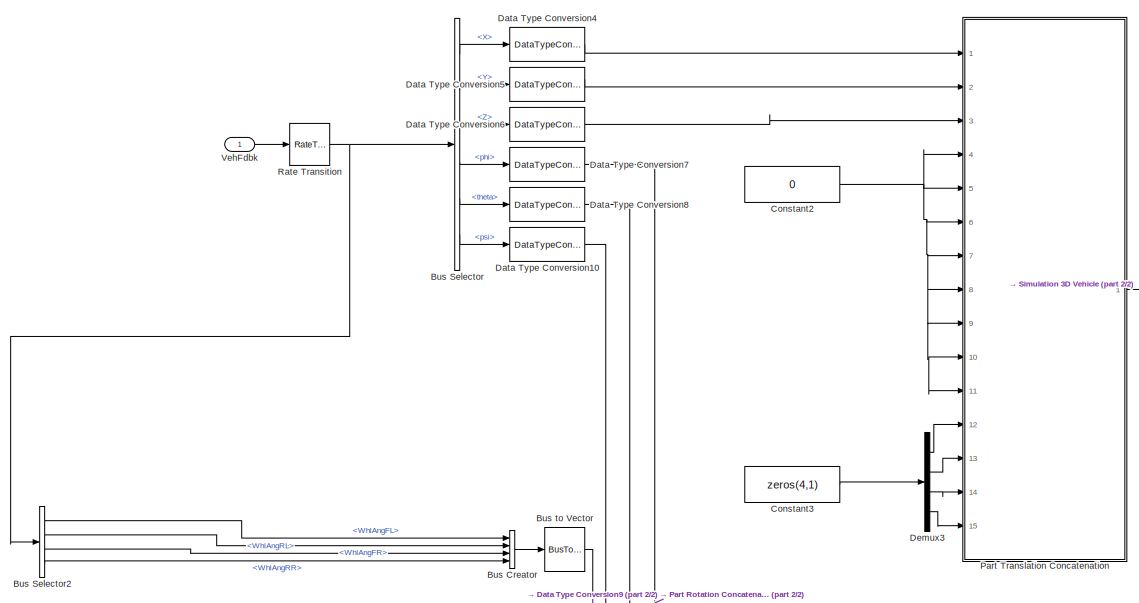
[diagram: Visualization/UE - part 1/2, top center region]
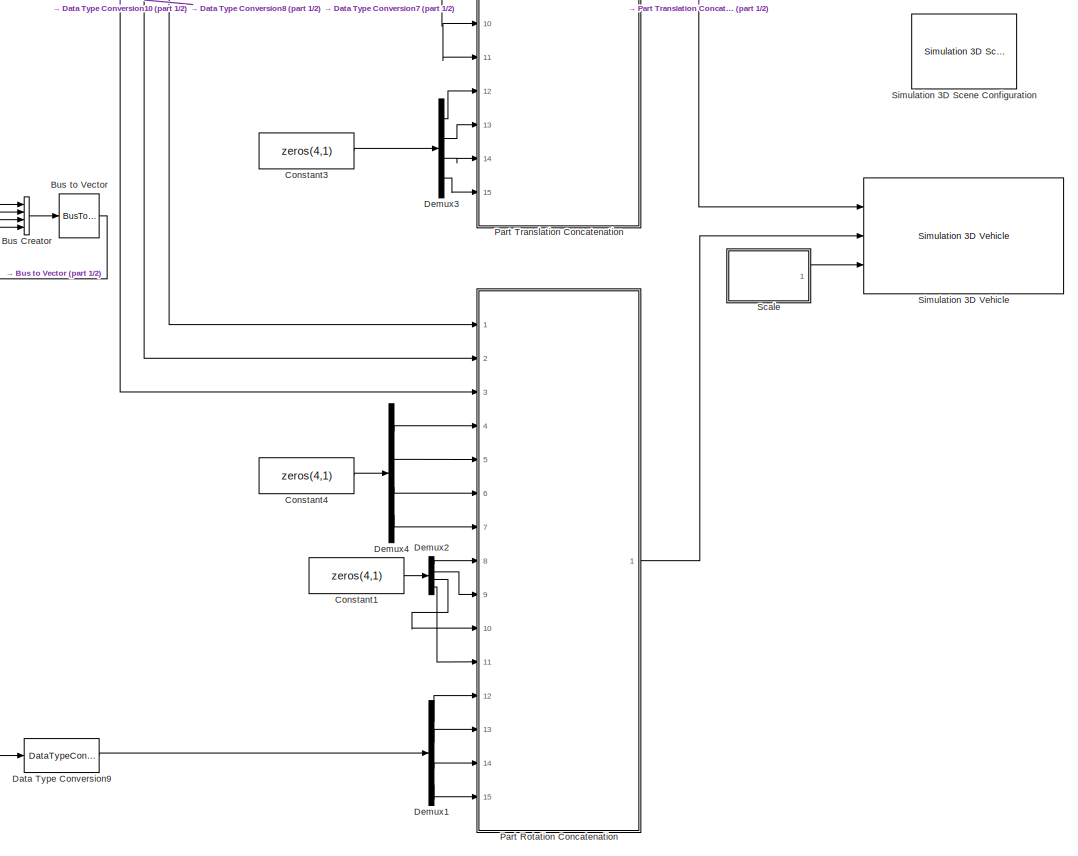
[diagram: Visualization/UE - part 2/2, central region]
BLOCK [SubSystem] Visualization/UE
  Commented = on
  Ports = [1]
  RequestExecContextInheritance = off
BLOCK [BusCreator] Visualization/UE/Bus Creator
  DisplayOption = bar
  InheritFromInputs = on
  Inputs = 4
  Ports = [4, 1]
BLOCK [BusSelector] Visualization/UE/Bus Selector
  OutputAsBus = off
  OutputSignals = X,Y,Z,phi,theta,psi
  Ports = [1, 6]
BLOCK [BusSelector] Visualization/UE/Bus Selector2
  OutputAsBus = off
  OutputSignals = WhlAngFL,WhlAngFR,WhlAngRL,WhlAngRR
  Ports = [1, 4]
BLOCK [BusToVector] Visualization/UE/Bus to Vector
BLOCK [Constant] Visualization/UE/Constant1
  OutDataTypeStr = single
  Value = zeros(4,1)
BLOCK [Constant] Visualization/UE/Constant2
  OutDataTypeStr = single
  Value = 0
BLOCK [Constant] Visualization/UE/Constant3
  OutDataTypeStr = single
  Value = zeros(4,1)
BLOCK [Constant] Visualization/UE/Constant4
  OutDataTypeStr = single
  Value = zeros(4,1)
BLOCK [DataTypeConversion] Visualization/UE/Data Type Conversion10
  OutDataTypeStr = single
  RndMeth = Floor
  SaturateOnIntegerOverflow = off
BLOCK [DataTypeConversion] Visualization/UE/Data Type Conversion4
  OutDataTypeStr = single
  RndMeth = Floor
  SaturateOnIntegerOverflow = off
BLOCK [DataTypeConversion] Visualization/UE/Data Type Conversion5
  OutDataTypeStr = single
  RndMeth = Floor
  SaturateOnIntegerOverflow = off
BLOCK [DataTypeConversion] Visualization/UE/Data Type Conversion6
  OutDataTypeStr = single
  RndMeth = Floor
  SaturateOnIntegerOverflow = off
BLOCK [DataTypeConversion] Visualization/UE/Data Type Conversion7
  OutDataTypeStr = single
  RndMeth = Floor
  SaturateOnIntegerOverflow = off
BLOCK [DataTypeConversion] Visualization/UE/Data Type Conversion8
  OutDataTypeStr = single
  RndMeth = Floor
  SaturateOnIntegerOverflow = off
BLOCK [DataTypeConversion] Visualization/UE/Data Type Conversion9
  OutDataTypeStr = single
  RndMeth = Floor
  SaturateOnIntegerOverflow = off
BLOCK [Demux] Visualization/UE/Demux1
  DisplayOption = bar
  Ports = [1, 4]
BLOCK [Demux] Visualization/UE/Demux2
  DisplayOption = bar
  Ports = [1, 4]
BLOCK [Demux] Visualization/UE/Demux3
  DisplayOption = bar
  Ports = [1, 4]
BLOCK [Demux] Visualization/UE/Demux4
  DisplayOption = bar
  Ports = [1, 4]
BLOCK [SubSystem] Visualization/UE/Part Rotation Concatenation
  Ports = [15, 1]
  RequestExecContextInheritance = off
BLOCK [Concatenate] Visualization/UE/Part Rotation Concatenation/AllParts
  Mode = Multidimensional array
  NumInputs = 5
  Ports = [5, 1]
BLOCK [Concatenate] Visualization/UE/Part Rotation Concatenation/Body
  ConcatenateDimension = 2
  Mode = Multidimensional array
  NumInputs = 3
  Ports = [3, 1]
BLOCK [Inport] Visualization/UE/Part Rotation Concatenation/Body Ptich
  IconDisplay = Port number
  Port = 2
BLOCK [Inport] Visualization/UE/Part Rotation Concatenation/Body Roll
  IconDisplay = Port number
BLOCK [Inport] Visualization/UE/Part Rotation Concatenation/Body Yaw
  IconDisplay = Port number
  Port = 3
BLOCK [Outport] Visualization/UE/Part Rotation Concatenation/ConcatOut
  IconDisplay = Port number
  VectorParamsAs1DForOutWhenUnconnected = off
BLOCK [Concatenate] Visualization/UE/Part Rotation Concatenation/WheelFrontLeft
  ConcatenateDimension = 2
  Mode = Multidimensional array
  NumInputs = 3
  Ports = [3, 1]
BLOCK [Inport] Visualization/UE/Part Rotation Concatenation/WheelFrontLeft Pitch
  IconDisplay = Port number
  Port = 4
BLOCK [Inport] Visualization/UE/Part Rotation Concatenation/WheelFrontLeft Roll
  IconDisplay = Port number
  Port = 8
BLOCK [Inport] Visualization/UE/Part Rotation Concatenation/WheelFrontLeft Yaw
  IconDisplay = Port number
  Port = 12
BLOCK [Concatenate] Visualization/UE/Part Rotation Concatenation/WheelFrontRight
  ConcatenateDimension = 2
  Mode = Multidimensional array
  NumInputs = 3
  Ports = [3, 1]
BLOCK [Inport] Visualization/UE/Part Rotation Concatenation/WheelFrontRight Pitch
  IconDisplay = Port number
  Port = 5
BLOCK [Inport] Visualization/UE/Part Rotation Concatenation/WheelFrontRight Roll
  IconDisplay = Port number
  Port = 9
BLOCK [Inport] Visualization/UE/Part Rotation Concatenation/WheelFrontRight Yaw
  IconDisplay = Port number
  Port = 13
BLOCK [Concatenate] Visualization/UE/Part Rotation Concatenation/WheelRearLeft
  ConcatenateDimension = 2
  Mode = Multidimensional array
  NumInputs = 3
  Ports = [3, 1]
BLOCK [Inport] Visualization/UE/Part Rotation Concatenation/WheelRearLeft Pitch
  IconDisplay = Port number
  Port = 6
BLOCK [Inport] Visualization/UE/Part Rotation Concatenation/WheelRearLeft Roll
  IconDisplay = Port number
  Port = 10
BLOCK [Inport] Visualization/UE/Part Rotation Concatenation/WheelRearLeft Yaw
  IconDisplay = Port number
  Port = 14
BLOCK [Concatenate] Visualization/UE/Part Rotation Concatenation/WheelRearRight
  ConcatenateDimension = 2
  Mode = Multidimensional array
  NumInputs = 3
  Ports = [3, 1]
BLOCK [Inport] Visualization/UE/Part Rotation Concatenation/WheelRearRight Ptich
  IconDisplay = Port number
  Port = 7
BLOCK [Inport] Visualization/UE/Part Rotation Concatenation/WheelRearRight Roll
  IconDisplay = Port number
  Port = 11
BLOCK [Inport] Visualization/UE/Part Rotation Concatenation/WheelRearRight Yaw
  IconDisplay = Port number
  Port = 15
BLOCK [SubSystem] Visualization/UE/Part Translation Concatenation
  Ports = [15, 1]
  RequestExecContextInheritance = off
BLOCK [Concatenate] Visualization/UE/Part Translation Concatenation/AllParts
  Mode = Multidimensional array
  NumInputs = 5
  Ports = [5, 1]
BLOCK [Concatenate] Visualization/UE/Part Translation Concatenation/Body
  ConcatenateDimension = 2
  Mode = Multidimensional array
  NumInputs = 3
  Ports = [3, 1]
BLOCK [Inport] Visualization/UE/Part Translation Concatenation/BodyX
  IconDisplay = Port number
BLOCK [Inport] Visualization/UE/Part Translation Concatenation/BodyY
  IconDisplay = Port number
  Port = 2
BLOCK [Inport] Visualization/UE/Part Translation Concatenation/BodyZ
  IconDisplay = Port number
  Port = 3
BLOCK [Outport] Visualization/UE/Part Translation Concatenation/ConcatOut
  IconDisplay = Port number
  VectorParamsAs1DForOutWhenUnconnected = off
BLOCK [Concatenate] Visualization/UE/Part Translation Concatenation/WheelFrontLeft
  ConcatenateDimension = 2
  Mode = Multidimensional array
  NumInputs = 3
  Ports = [3, 1]
BLOCK [Inport] Visualization/UE/Part Translation Concatenation/WheelFrontLeftX
  IconDisplay = Port number
  Port = 4
BLOCK [Inport] Visualization/UE/Part Translation Concatenation/WheelFrontLeftY
  IconDisplay = Port number
  Port = 8
BLOCK [Inport] Visualization/UE/Part Translation Concatenation/WheelFrontLeftZ
  IconDisplay = Port number
  Port = 12
BLOCK [Concatenate] Visualization/UE/Part Translation Concatenation/WheelFrontRight
  ConcatenateDimension = 2
  Mode = Multidimensional array
  NumInputs = 3
  Ports = [3, 1]
BLOCK [Inport] Visualization/UE/Part Translation Concatenation/WheelFrontRightX
  IconDisplay = Port number
  Port = 5
BLOCK [Inport] Visualization/UE/Part Translation Concatenation/WheelFrontRightY
  IconDisplay = Port number
  Port = 9
BLOCK [Inport] Visualization/UE/Part Translation Concatenation/WheelFrontRightZ
  IconDisplay = Port number
  Port = 13
BLOCK [Concatenate] Visualization/UE/Part Translation Concatenation/WheelRearLeft
  ConcatenateDimension = 2
  Mode = Multidimensional array
  NumInputs = 3
  Ports = [3, 1]
BLOCK [Inport] Visualization/UE/Part Translation Concatenation/WheelRearLeftX
  IconDisplay = Port number
  Port = 6
BLOCK [Inport] Visualization/UE/Part Translation Concatenation/WheelRearLeftY
  IconDisplay = Port number
  Port = 10
BLOCK [Inport] Visualization/UE/Part Translation Concatenation/WheelRearLeftZ
  IconDisplay = Port number
  Port = 14
BLOCK [Concatenate] Visualization/UE/Part Translation Concatenation/WheelRearRight
  ConcatenateDimension = 2
  Mode = Multidimensional array
  NumInputs = 3
  Ports = [3, 1]
BLOCK [Inport] Visualization/UE/Part Translation Concatenation/WheelRearRightX
  IconDisplay = Port number
  Port = 7
BLOCK [Inport] Visualization/UE/Part Translation Concatenation/WheelRearRightY
  IconDisplay = Port number
  Port = 11
BLOCK [Inport] Visualization/UE/Part Translation Concatenation/WheelRearRightZ
  IconDisplay = Port number
  Port = 15
BLOCK [RateTransition] Visualization/UE/Rate Transition
  OutPortSampleTime = Ts
BLOCK [SubSystem] Visualization/UE/Scale
  Ports = [0, 1]
  RequestExecContextInheritance = off
BLOCK [Constant] Visualization/UE/Scale/Constant1
  OutDataTypeStr = single
BLOCK [Constant] Visualization/UE/Scale/Constant10
  OutDataTypeStr = single
BLOCK [Constant] Visualization/UE/Scale/Constant11
  OutDataTypeStr = single
BLOCK [Constant] Visualization/UE/Scale/Constant12
  OutDataTypeStr = single
BLOCK [Constant] Visualization/UE/Scale/Constant17
  OutDataTypeStr = single
BLOCK [Constant] Visualization/UE/Scale/Constant2
  OutDataTypeStr = single
BLOCK [Constant] Visualization/UE/Scale/Constant3
  OutDataTypeStr = single
BLOCK [Constant] Visualization/UE/Scale/Constant32
  OutDataTypeStr = single
BLOCK [Constant] Visualization/UE/Scale/Constant33
  OutDataTypeStr = single
BLOCK [Constant] Visualization/UE/Scale/Constant4
  OutDataTypeStr = single
BLOCK [Constant] Visualization/UE/Scale/Constant5
  OutDataTypeStr = single
BLOCK [Constant] Visualization/UE/Scale/Constant6
  OutDataTypeStr = single
BLOCK [Constant] Visualization/UE/Scale/Constant7
  OutDataTypeStr = single
BLOCK [Constant] Visualization/UE/Scale/Constant8
  OutDataTypeStr = single
BLOCK [Constant] Visualization/UE/Scale/Constant9
  OutDataTypeStr = single
BLOCK [SubSystem] Visualization/UE/Scale/PartConcatenation
  Ports = [15, 1]
  RequestExecContextInheritance = off
BLOCK [Concatenate] Visualization/UE/Scale/PartConcatenation/AllParts
  Mode = Multidimensional array
  NumInputs = 5
  Ports = [5, 1]
BLOCK [Concatenate] Visualization/UE/Scale/PartConcatenation/Body
  ConcatenateDimension = 2
  Mode = Multidimensional array
  NumInputs = 3
  Ports = [3, 1]
BLOCK [Inport] Visualization/UE/Scale/PartConcatenation/BodyX
  IconDisplay = Port number
BLOCK [Inport] Visualization/UE/Scale/PartConcatenation/BodyY
  IconDisplay = Port number
  Port = 2
BLOCK [Inport] Visualization/UE/Scale/PartConcatenation/BodyZ
  IconDisplay = Port number
  Port = 3
BLOCK [Outport] Visualization/UE/Scale/PartConcatenation/ConcatOut
  IconDisplay = Port number
  VectorParamsAs1DForOutWhenUnconnected = off
BLOCK [Concatenate] Visualization/UE/Scale/PartConcatenation/WheelFrontLeft
  ConcatenateDimension = 2
  Mode = Multidimensional array
  NumInputs = 3
  Ports = [3, 1]
BLOCK [Inport] Visualization/UE/Scale/PartConcatenation/WheelFrontLeftX
  IconDisplay = Port number
  Port = 4
BLOCK [Inport] Visualization/UE/Scale/PartConcatenation/WheelFrontLeftY
  IconDisplay = Port number
  Port = 5
BLOCK [Inport] Visualization/UE/Scale/PartConcatenation/WheelFrontLeftZ
  IconDisplay = Port number
  Port = 6
BLOCK [Concatenate] Visualization/UE/Scale/PartConcatenation/WheelFrontRight
  ConcatenateDimension = 2
  Mode = Multidimensional array
  NumInputs = 3
  Ports = [3, 1]
BLOCK [Inport] Visualization/UE/Scale/PartConcatenation/WheelFrontRightX
  IconDisplay = Port number
  Port = 7
BLOCK [Inport] Visualization/UE/Scale/PartConcatenation/WheelFrontRightY
  IconDisplay = Port number
  Port = 8
BLOCK [Inport] Visualization/UE/Scale/PartConcatenation/WheelFrontRightZ
  IconDisplay = Port number
  Port = 9
BLOCK [Concatenate] Visualization/UE/Scale/PartConcatenation/WheelRearLeft
  ConcatenateDimension = 2
  Mode = Multidimensional array
  NumInputs = 3
  Ports = [3, 1]
BLOCK [Inport] Visualization/UE/Scale/PartConcatenation/WheelRearLeftX
  IconDisplay = Port number
  Port = 10
BLOCK [Inport] Visualization/UE/Scale/PartConcatenation/WheelRearLeftY
  IconDisplay = Port number
  Port = 11
BLOCK [Inport] Visualization/UE/Scale/PartConcatenation/WheelRearLeftZ
  IconDisplay = Port number
  Port = 12
BLOCK [Concatenate] Visualization/UE/Scale/PartConcatenation/WheelRearRight
  ConcatenateDimension = 2
  Mode = Multidimensional array
  NumInputs = 3
  Ports = [3, 1]
BLOCK [Inport] Visualization/UE/Scale/PartConcatenation/WheelRearRightX
  IconDisplay = Port number
  Port = 13
BLOCK [Inport] Visualization/UE/Scale/PartConcatenation/WheelRearRightY
  IconDisplay = Port number
  Port = 14
BLOCK [Inport] Visualization/UE/Scale/PartConcatenation/WheelRearRightZ
  IconDisplay = Port number
  Port = 15
BLOCK [Outport] Visualization/UE/Scale/ScaleOut
  IconDisplay = Port number
  VectorParamsAs1DForOutWhenUnconnected = off
BLOCK [Reference] Visualization/UE/Simulation 3D Scene Configuration  REF=sim3dlib/Simulation 3D Scene Configuration
  Ports = []
  Priority = 0
  SourceBlock = sim3dlib/Simulation 3D Scene Configuration
  SourceProductBaseCode = DR
  SourceProductName = Automated Driving Toolbox
  SourceType = Simulation 3D Scene Configuration
BLOCK [Reference] Visualization/UE/Simulation 3D Vehicle  REF=sim3dautolib/Simulation 3D Vehicle
  Ports = [3]
  Priority = -1
  SourceBlock = sim3dautolib/Simulation 3D Vehicle
  SourceProductBaseCode = DR
  SourceProductName = Automated Driving Toolbox
  SourceType = Simulation 3D Vehicle
BLOCK [Inport] Visualization/UE/VehFdbk
  IconDisplay = Port number
BLOCK [SubSystem] Visualization/Visualization
  Ports = [5]
  RequestExecContextInheritance = off
BLOCK [Ground] Visualization/Visualization/Ground1
BLOCK [Ground] Visualization/Visualization/Ground2
BLOCK [Inport] Visualization/Visualization/InertAng
  IconDisplay = Port number
  Port = 4
BLOCK [Mux] Visualization/Visualization/Mux1
  DisplayOption = bar
  Inputs = 2
  Ports = [2, 1]
BLOCK [Mux] Visualization/Visualization/Mux2
  DisplayOption = bar
  Inputs = 2
  Ports = [2, 1]
BLOCK [Inport] Visualization/Visualization/Ref
  IconDisplay = Port number
  Port = 3
BLOCK [SubSystem] Visualization/Visualization/Vehicle XY Plotter
  Ports = [5]
  RequestExecContextInheritance = off
BLOCK [Inport] Visualization/Visualization/Vehicle XY Plotter/InertAng
  IconDisplay = Port number
  Port = 2
BLOCK [Inport] Visualization/Visualization/Vehicle XY Plotter/InertXYZ
  IconDisplay = Port number
BLOCK [Inport] Visualization/Visualization/Vehicle XY Plotter/InertXdotYdotZdot
  IconDisplay = Port number
  Port = 3
BLOCK [RateTransition] Visualization/Visualization/Vehicle XY Plotter/Rate Transition1
  Deterministic = off
  OutPortSampleTime = Ts
BLOCK [RateTransition] Visualization/Visualization/Vehicle XY Plotter/Rate Transition2
  Deterministic = off
  OutPortSampleTime = Ts
BLOCK [RateTransition] Visualization/Visualization/Vehicle XY Plotter/Rate Transition3
  Deterministic = off
  OutPortSampleTime = Ts
BLOCK [RateTransition] Visualization/Visualization/Vehicle XY Plotter/Rate Transition4
  Deterministic = off
  OutPortSampleTime = Ts
BLOCK [RateTransition] Visualization/Visualization/Vehicle XY Plotter/Rate Transition5
  Deterministic = off
  OutPortSampleTime = Ts
BLOCK [Inport] Visualization/Visualization/Vehicle XY Plotter/RefXYZ
  IconDisplay = Port number
  Port = 5
BLOCK [Reference] Visualization/Visualization/Vehicle XY Plotter/Vehicle XY Plotter  REF=vehdynlibviscommon/Vehicle XY Plotter
  Ports = [5]
  SourceBlock = vehdynlibviscommon/Vehicle XY Plotter
  SourceProductBaseCode = VE
  SourceProductName = Vehicle Dynamics Blockset
  SourceType = Vehicle XY Plotter
BLOCK [Inport] Visualization/Visualization/Vehicle XY Plotter/WhlAng
  IconDisplay = Port number
  Port = 4
BLOCK [Inport] Visualization/Visualization/Velocity
  IconDisplay = Port number
  Port = 2
BLOCK [Inport] Visualization/Visualization/WhlAng
  IconDisplay = Port number
  Port = 5
BLOCK [Inport] Visualization/Visualization/position
  IconDisplay = Port number
ANNOTATION MPC/Lane Center/Center from Left: Center from Left
ANNOTATION MPC/Lane Center/Center from Left: Curvature = 1 / ( 1 / (left curvature) – guard) = left curvature / (1 – (left curvature) * guard).
ANNOTATION MPC/Lane Center/Center from Left: Curvature Derivative = D[ 1 / ( 1 / (left curvature) – guard)] = left curvature derivative / (1 – (left curvature) * guard)^2.
ANNOTATION MPC/Lane Center/Center from Left and Right: Center from Left and Right
ANNOTATION MPC/Lane Center/Center from Right: Center from Right
ANNOTATION MPC/Lane Center/Center from Right: Curvature = 1 / ( 1 / (right curvature) + guard) = right curvature / (1 + (right curvature) * guard)
ANNOTATION MPC/Lane Center/Center from Right: Curvature Derivative = D[ 1 / ( 1 / (right curvature) + guard)] = right curvature derivative / (1 + (right curvature) * guard)^2
LINE Longitudinal Driver,Vehicle and Environment/Add:1 -> Longitudinal Driver,Vehicle and Environment/Data Type Conversion1:1
LINE Longitudinal Driver,Vehicle and Environment/Constant4:1 -> Longitudinal Driver,Vehicle and Environment/Add:2
LINE Longitudinal Driver,Vehicle and Environment/Data Type Conversion1:1 -> Longitudinal Driver,Vehicle and Environment/Longitudinal Velocity:1
LINE Longitudinal Driver,Vehicle and Environment/Longitudinal Driver and Error Analysis/Acceleration to Velocity/AND:1 -> Longitudinal Driver,Vehicle and Environment/Longitudinal Driver and Error Analysis/Acceleration to Velocity/Switch:2
LINE Longitudinal Driver,Vehicle and Environment/Longitudinal Driver and Error Analysis/Acceleration to Velocity/Abs:1 -> Longitudinal Driver,Vehicle and Environment/Longitudinal Driver and Error Analysis/Acceleration to Velocity/Minus:1
LINE Longitudinal Driver,Vehicle and Environment/Longitudinal Driver and Error Analysis/Acceleration to Velocity/AccelCmd:1 -> Longitudinal Driver,Vehicle and Environment/Longitudinal Driver and Error Analysis/Acceleration to Velocity/Add:1
LINE Longitudinal Driver,Vehicle and Environment/Longitudinal Driver and Error Analysis/Acceleration to Velocity/Add:1 -> Longitudinal Driver,Vehicle and Environment/Longitudinal Driver and Error Analysis/Acceleration to Velocity/Saturated integrator:1
LINE Longitudinal Driver,Vehicle and Environment/Longitudinal Driver and Error Analysis/Acceleration to Velocity/Compare To Zero1:1 -> Longitudinal Driver,Vehicle and Environment/Longitudinal Driver and Error Analysis/Acceleration to Velocity/AND:1
LINE Longitudinal Driver,Vehicle and Environment/Longitudinal Driver and Error Analysis/Acceleration to Velocity/Compare To Zero:1 -> Longitudinal Driver,Vehicle and Environment/Longitudinal Driver and Error Analysis/Acceleration to Velocity/AND:2
LINE Longitudinal Driver,Vehicle and Environment/Longitudinal Driver and Error Analysis/Acceleration to Velocity/Constant1:1 -> Longitudinal Driver,Vehicle and Environment/Longitudinal Driver and Error Analysis/Acceleration to Velocity/Switch:1
LINE Longitudinal Driver,Vehicle and Environment/Longitudinal Driver and Error Analysis/Acceleration to Velocity/Constant:1 -> Longitudinal Driver,Vehicle and Environment/Longitudinal Driver and Error Analysis/Acceleration to Velocity/Minus:2
NET Longitudinal Driver,Vehicle and Environment/Longitudinal Driver and Error Analysis/Acceleration to Velocity/DecelCmd:1 -> Longitudinal Driver,Vehicle and Environment/Longitudinal Driver and Error Analysis/Acceleration to Velocity/Add:2, Longitudinal Driver,Vehicle and Environment/Longitudinal Driver and Error Analysis/Acceleration to Velocity/Compare To Zero1:1
NET Longitudinal Driver,Vehicle and Environment/Longitudinal Driver and Error Analysis/Acceleration to Velocity/Direction:1 -> Longitudinal Driver,Vehicle and Environment/Longitudinal Driver and Error Analysis/Acceleration to Velocity/Product1:2, Longitudinal Driver,Vehicle and Environment/Longitudinal Driver and Error Analysis/Acceleration to Velocity/Saturated integrator:2
LINE Longitudinal Driver,Vehicle and Environment/Longitudinal Driver and Error Analysis/Acceleration to Velocity/Minus:1 -> Longitudinal Driver,Vehicle and Environment/Longitudinal Driver and Error Analysis/Acceleration to Velocity/Compare To Zero:1
LINE Longitudinal Driver,Vehicle and Environment/Longitudinal Driver and Error Analysis/Acceleration to Velocity/Product1:1 -> Longitudinal Driver,Vehicle and Environment/Longitudinal Driver and Error Analysis/Acceleration to Velocity/Switch:3
LINE Longitudinal Driver,Vehicle and Environment/Longitudinal Driver and Error Analysis/Acceleration to Velocity/Saturated integrator:1 -> Longitudinal Driver,Vehicle and Environment/Longitudinal Driver and Error Analysis/Acceleration to Velocity/Product1:1
NET Longitudinal Driver,Vehicle and Environment/Longitudinal Driver and Error Analysis/Acceleration to Velocity/Switch:1 -> Longitudinal Driver,Vehicle and Environment/Longitudinal Driver and Error Analysis/Acceleration to Velocity/Unit Delay:1, Longitudinal Driver,Vehicle and Environment/Longitudinal Driver and Error Analysis/Acceleration to Velocity/Velocity:1
LINE Longitudinal Driver,Vehicle and Environment/Longitudinal Driver and Error Analysis/Acceleration to Velocity/Unit Delay:1 -> Longitudinal Driver,Vehicle and Environment/Longitudinal Driver and Error Analysis/Acceleration to Velocity/Abs:1
LINE Longitudinal Driver,Vehicle and Environment/Longitudinal Driver and Error Analysis/Acceleration to Velocity:1 -> Longitudinal Driver,Vehicle and Environment/Longitudinal Driver and Error Analysis/Velocity:1
LINE Longitudinal Driver,Vehicle and Environment/Longitudinal Driver and Error Analysis/Constant1:1 -> Longitudinal Driver,Vehicle and Environment/Longitudinal Driver and Error Analysis/MATLAB System:4
LINE Longitudinal Driver,Vehicle and Environment/Longitudinal Driver and Error Analysis/Constant2:1 -> Longitudinal Driver,Vehicle and Environment/Longitudinal Driver and Error Analysis/MATLAB System:5
LINE Longitudinal Driver,Vehicle and Environment/Longitudinal Driver and Error Analysis/Constant3:1 -> Longitudinal Driver,Vehicle and Environment/Longitudinal Driver and Error Analysis/MATLAB System:3
LINE Longitudinal Driver,Vehicle and Environment/Longitudinal Driver and Error Analysis/Constant:1 -> Longitudinal Driver,Vehicle and Environment/Longitudinal Driver and Error Analysis/MATLAB System:6
LINE Longitudinal Driver,Vehicle and Environment/Longitudinal Driver and Error Analysis/Error Analysis/CurrPose:1 -> Longitudinal Driver,Vehicle and Environment/Longitudinal Driver and Error Analysis/Error Analysis/Sum1:2
LINE Longitudinal Driver,Vehicle and Environment/Longitudinal Driver and Error Analysis/Error Analysis/CurrVelocity:1 -> Longitudinal Driver,Vehicle and Environment/Longitudinal Driver and Error Analysis/Error Analysis/Sum:2
NET Longitudinal Driver,Vehicle and Environment/Longitudinal Driver and Error Analysis/Error Analysis/Divide1:1 -> Longitudinal Driver,Vehicle and Environment/Longitudinal Driver and Error Analysis/Error Analysis/Scope3:1, Longitudinal Driver,Vehicle and Environment/Longitudinal Driver and Error Analysis/Error Analysis/To File:1
NET Longitudinal Driver,Vehicle and Environment/Longitudinal Driver and Error Analysis/Error Analysis/Divide:1 -> Longitudinal Driver,Vehicle and Environment/Longitudinal Driver and Error Analysis/Error Analysis/Scope1:1, Longitudinal Driver,Vehicle and Environment/Longitudinal Driver and Error Analysis/Error Analysis/To File2:1
LINE Longitudinal Driver,Vehicle and Environment/Longitudinal Driver and Error Analysis/Error Analysis/Sum1:1 -> Longitudinal Driver,Vehicle and Environment/Longitudinal Driver and Error Analysis/Error Analysis/Divide1:1
LINE Longitudinal Driver,Vehicle and Environment/Longitudinal Driver and Error Analysis/Error Analysis/Sum:1 -> Longitudinal Driver,Vehicle and Environment/Longitudinal Driver and Error Analysis/Error Analysis/Divide:1
NET Longitudinal Driver,Vehicle and Environment/Longitudinal Driver and Error Analysis/Error Analysis/refPose:1 -> Longitudinal Driver,Vehicle and Environment/Longitudinal Driver and Error Analysis/Error Analysis/Divide1:2, Longitudinal Driver,Vehicle and Environment/Longitudinal Driver and Error Analysis/Error Analysis/Sum1:1
NET Longitudinal Driver,Vehicle and Environment/Longitudinal Driver and Error Analysis/Error Analysis/refVelocity:1 -> Longitudinal Driver,Vehicle and Environment/Longitudinal Driver and Error Analysis/Error Analysis/Divide:2, Longitudinal Driver,Vehicle and Environment/Longitudinal Driver and Error Analysis/Error Analysis/Sum:1
LINE Longitudinal Driver,Vehicle and Environment/Longitudinal Driver and Error Analysis/Ground:1 -> Longitudinal Driver,Vehicle and Environment/Longitudinal Driver and Error Analysis/Longitudinal Driver:3
LINE Longitudinal Driver,Vehicle and Environment/Longitudinal Driver and Error Analysis/Longitudinal Driver:1 -> Longitudinal Driver,Vehicle and Environment/Longitudinal Driver and Error Analysis/Terminator2:1
LINE Longitudinal Driver,Vehicle and Environment/Longitudinal Driver and Error Analysis/Longitudinal Driver:2 -> Longitudinal Driver,Vehicle and Environment/Longitudinal Driver and Error Analysis/Acceleration to Velocity:1
LINE Longitudinal Driver,Vehicle and Environment/Longitudinal Driver and Error Analysis/Longitudinal Driver:3 -> Longitudinal Driver,Vehicle and Environment/Longitudinal Driver and Error Analysis/Acceleration to Velocity:2
NET Longitudinal Driver,Vehicle and Environment/Longitudinal Driver and Error Analysis/MATLAB System:1 -> Longitudinal Driver,Vehicle and Environment/Longitudinal Driver and Error Analysis/Error Analysis:4, Longitudinal Driver,Vehicle and Environment/Longitudinal Driver and Error Analysis/Selector:1
NET Longitudinal Driver,Vehicle and Environment/Longitudinal Driver and Error Analysis/MATLAB System:2 -> Longitudinal Driver,Vehicle and Environment/Longitudinal Driver and Error Analysis/Error Analysis:3, Longitudinal Driver,Vehicle and Environment/Longitudinal Driver and Error Analysis/Longitudinal Driver:1
LINE Longitudinal Driver,Vehicle and Environment/Longitudinal Driver and Error Analysis/MATLAB System:3 -> Longitudinal Driver,Vehicle and Environment/Longitudinal Driver and Error Analysis/Acceleration to Velocity:3
LINE Longitudinal Driver,Vehicle and Environment/Longitudinal Driver and Error Analysis/MATLAB System:4 -> Longitudinal Driver,Vehicle and Environment/Longitudinal Driver and Error Analysis/Terminator:1
LINE Longitudinal Driver,Vehicle and Environment/Longitudinal Driver and Error Analysis/MATLAB System:5 -> Longitudinal Driver,Vehicle and Environment/Longitudinal Driver and Error Analysis/Terminator1:1
LINE Longitudinal Driver,Vehicle and Environment/Longitudinal Driver and Error Analysis/Magnitude/Add1:1 -> Longitudinal Driver,Vehicle and Environment/Longitudinal Driver and Error Analysis/Magnitude/Sqrt:1
LINE Longitudinal Driver,Vehicle and Environment/Longitudinal Driver and Error Analysis/Magnitude/Selector1:1 -> Longitudinal Driver,Vehicle and Environment/Longitudinal Driver and Error Analysis/Magnitude/Square1:1
LINE Longitudinal Driver,Vehicle and Environment/Longitudinal Driver and Error Analysis/Magnitude/Selector2:1 -> Longitudinal Driver,Vehicle and Environment/Longitudinal Driver and Error Analysis/Magnitude/Square:1
LINE Longitudinal Driver,Vehicle and Environment/Longitudinal Driver and Error Analysis/Magnitude/Sqrt:1 -> Longitudinal Driver,Vehicle and Environment/Longitudinal Driver and Error Analysis/Magnitude/Speed:1
LINE Longitudinal Driver,Vehicle and Environment/Longitudinal Driver and Error Analysis/Magnitude/Square1:1 -> Longitudinal Driver,Vehicle and Environment/Longitudinal Driver and Error Analysis/Magnitude/Add1:2
LINE Longitudinal Driver,Vehicle and Environment/Longitudinal Driver and Error Analysis/Magnitude/Square:1 -> Longitudinal Driver,Vehicle and Environment/Longitudinal Driver and Error Analysis/Magnitude/Add1:1
NET Longitudinal Driver,Vehicle and Environment/Longitudinal Driver and Error Analysis/Magnitude/XYVelocity:1 -> Longitudinal Driver,Vehicle and Environment/Longitudinal Driver and Error Analysis/Magnitude/Selector1:1, Longitudinal Driver,Vehicle and Environment/Longitudinal Driver and Error Analysis/Magnitude/Selector2:1
NET Longitudinal Driver,Vehicle and Environment/Longitudinal Driver and Error Analysis/Magnitude:1 -> Longitudinal Driver,Vehicle and Environment/Longitudinal Driver and Error Analysis/Error Analysis:2, Longitudinal Driver,Vehicle and Environment/Longitudinal Driver and Error Analysis/Longitudinal Driver:2, Longitudinal Driver,Vehicle and Environment/Longitudinal Driver and Error Analysis/MATLAB System:2
LINE Longitudinal Driver,Vehicle and Environment/Longitudinal Driver and Error Analysis/Mux:1 -> Longitudinal Driver,Vehicle and Environment/Longitudinal Driver and Error Analysis/Transpose:1
LINE Longitudinal Driver,Vehicle and Environment/Longitudinal Driver and Error Analysis/Selector1:1 -> Longitudinal Driver,Vehicle and Environment/Longitudinal Driver and Error Analysis/To File2:1
LINE Longitudinal Driver,Vehicle and Environment/Longitudinal Driver and Error Analysis/Selector2:1 -> Longitudinal Driver,Vehicle and Environment/Longitudinal Driver and Error Analysis/To File1:1
NET Longitudinal Driver,Vehicle and Environment/Longitudinal Driver and Error Analysis/Selector:1 -> Longitudinal Driver,Vehicle and Environment/Longitudinal Driver and Error Analysis/Ref:1, Longitudinal Driver,Vehicle and Environment/Longitudinal Driver and Error Analysis/Selector1:1, Longitudinal Driver,Vehicle and Environment/Longitudinal Driver and Error Analysis/Selector2:1
NET Longitudinal Driver,Vehicle and Environment/Longitudinal Driver and Error Analysis/Transpose:1 -> Longitudinal Driver,Vehicle and Environment/Longitudinal Driver and Error Analysis/Error Analysis:1, Longitudinal Driver,Vehicle and Environment/Longitudinal Driver and Error Analysis/MATLAB System:1
LINE Longitudinal Driver,Vehicle and Environment/Longitudinal Driver and Error Analysis/XY:1 -> Longitudinal Driver,Vehicle and Environment/Longitudinal Driver and Error Analysis/Mux:1
LINE Longitudinal Driver,Vehicle and Environment/Longitudinal Driver and Error Analysis/XYVelocity:1 -> Longitudinal Driver,Vehicle and Environment/Longitudinal Driver and Error Analysis/Magnitude:1
LINE Longitudinal Driver,Vehicle and Environment/Longitudinal Driver and Error Analysis/Yaw:1 -> Longitudinal Driver,Vehicle and Environment/Longitudinal Driver and Error Analysis/Mux:2
NET Longitudinal Driver,Vehicle and Environment/Longitudinal Driver and Error Analysis:1 -> Longitudinal Driver,Vehicle and Environment/Add:1, Longitudinal Driver,Vehicle and Environment/Vehicle Dynamics:1
LINE Longitudinal Driver,Vehicle and Environment/Longitudinal Driver and Error Analysis:2 -> Longitudinal Driver,Vehicle and Environment/Ref:1
NET Longitudinal Driver,Vehicle and Environment/Rate Transition1:1 -> Longitudinal Driver,Vehicle and Environment/Longitudinal Driver and Error Analysis:3, Longitudinal Driver,Vehicle and Environment/XY Velocities:1
NET Longitudinal Driver,Vehicle and Environment/Rate Transition2:1 -> Longitudinal Driver,Vehicle and Environment/Longitudinal Driver and Error Analysis:2, Longitudinal Driver,Vehicle and Environment/Yaw Angle:1
LINE Longitudinal Driver,Vehicle and Environment/Rate Transition3:1 -> Longitudinal Driver,Vehicle and Environment/Yaw Rate:1
NET Longitudinal Driver,Vehicle and Environment/Rate Transition:1 -> Longitudinal Driver,Vehicle and Environment/Longitudinal Driver and Error Analysis:1, Longitudinal Driver,Vehicle and Environment/Selector1:1, Longitudinal Driver,Vehicle and Environment/Selector:1
LINE Longitudinal Driver,Vehicle and Environment/Selector1:1 -> Longitudinal Driver,Vehicle and Environment/Y-Position:1
LINE Longitudinal Driver,Vehicle and Environment/Selector:1 -> Longitudinal Driver,Vehicle and Environment/X-Position:1
LINE Longitudinal Driver,Vehicle and Environment/Steering Angle:1 -> Longitudinal Driver,Vehicle and Environment/Vehicle Dynamics:2
NET Longitudinal Driver,Vehicle and Environment/Vehicle Dynamics/Bicycle Model - Velocity Input:1 -> Longitudinal Driver,Vehicle and Environment/Vehicle Dynamics/Bus Selector:1, Longitudinal Driver,Vehicle and Environment/Vehicle Dynamics/UE :1
LINE Longitudinal Driver,Vehicle and Environment/Vehicle Dynamics/Bicycle Model - Velocity Input:2 -> Longitudinal Driver,Vehicle and Environment/Vehicle Dynamics/Terminator1:1
LINE Longitudinal Driver,Vehicle and Environment/Vehicle Dynamics/Bicycle Model - Velocity Input:3 -> Longitudinal Driver,Vehicle and Environment/Vehicle Dynamics/Terminator:1
LINE Longitudinal Driver,Vehicle and Environment/Vehicle Dynamics/Bicycle Model - Velocity Input:4 -> Longitudinal Driver,Vehicle and Environment/Vehicle Dynamics/Terminator3:1
LINE Longitudinal Driver,Vehicle and Environment/Vehicle Dynamics/Bicycle Model - Velocity Input:5 -> Longitudinal Driver,Vehicle and Environment/Vehicle Dynamics/Terminator2:1
LINE Longitudinal Driver,Vehicle and Environment/Vehicle Dynamics/Bus Selector:1 -> Longitudinal Driver,Vehicle and Environment/Vehicle Dynamics/Mux:1
LINE Longitudinal Driver,Vehicle and Environment/Vehicle Dynamics/Bus Selector:2 -> Longitudinal Driver,Vehicle and Environment/Vehicle Dynamics/Mux:2
LINE Longitudinal Driver,Vehicle and Environment/Vehicle Dynamics/Bus Selector:3 -> Longitudinal Driver,Vehicle and Environment/Vehicle Dynamics/Mux1:1
LINE Longitudinal Driver,Vehicle and Environment/Vehicle Dynamics/Bus Selector:4 -> Longitudinal Driver,Vehicle and Environment/Vehicle Dynamics/Mux1:2
LINE Longitudinal Driver,Vehicle and Environment/Vehicle Dynamics/Bus Selector:5 -> Longitudinal Driver,Vehicle and Environment/Vehicle Dynamics/Unit Conversion:1
LINE Longitudinal Driver,Vehicle and Environment/Vehicle Dynamics/Bus Selector:6 -> Longitudinal Driver,Vehicle and Environment/Vehicle Dynamics/Unit Conversion1:1
LINE Longitudinal Driver,Vehicle and Environment/Vehicle Dynamics/Data Type Conversion:1 -> Longitudinal Driver,Vehicle and Environment/Vehicle Dynamics/Low pass filter:1
LINE Longitudinal Driver,Vehicle and Environment/Vehicle Dynamics/Low pass filter:1 -> Longitudinal Driver,Vehicle and Environment/Vehicle Dynamics/Bicycle Model - Velocity Input:1
LINE Longitudinal Driver,Vehicle and Environment/Vehicle Dynamics/Mux1:1 -> Longitudinal Driver,Vehicle and Environment/Vehicle Dynamics/XY Velocities:1
LINE Longitudinal Driver,Vehicle and Environment/Vehicle Dynamics/Mux:1 -> Longitudinal Driver,Vehicle and Environment/Vehicle Dynamics/XY Positions:1
LINE Longitudinal Driver,Vehicle and Environment/Vehicle Dynamics/Steering Angle:1 -> Longitudinal Driver,Vehicle and Environment/Vehicle Dynamics/Data Type Conversion:1
LINE Longitudinal Driver,Vehicle and Environment/Vehicle Dynamics/Unit Conversion1:1 -> Longitudinal Driver,Vehicle and Environment/Vehicle Dynamics/Yaw Rate:1
LINE Longitudinal Driver,Vehicle and Environment/Vehicle Dynamics/Unit Conversion:1 -> Longitudinal Driver,Vehicle and Environment/Vehicle Dynamics/Yaw Angle:1
LINE Longitudinal Driver,Vehicle and Environment/Vehicle Dynamics/Velocity:1 -> Longitudinal Driver,Vehicle and Environment/Vehicle Dynamics/Bicycle Model - Velocity Input:2
NET Longitudinal Driver,Vehicle and Environment/Vehicle Dynamics:1 -> Longitudinal Driver,Vehicle and Environment/Rate Transition:1, Longitudinal Driver,Vehicle and Environment/XY Positions:1
LINE Longitudinal Driver,Vehicle and Environment/Vehicle Dynamics:2 -> Longitudinal Driver,Vehicle and Environment/Rate Transition1:1
LINE Longitudinal Driver,Vehicle and Environment/Vehicle Dynamics:3 -> Longitudinal Driver,Vehicle and Environment/Rate Transition2:1
LINE Longitudinal Driver,Vehicle and Environment/Vehicle Dynamics:4 -> Longitudinal Driver,Vehicle and Environment/Rate Transition3:1
LINE Longitudinal Driver,Vehicle and Environment/Vehicle Dynamics:5 -> Longitudinal Driver,Vehicle and Environment/UE :1
LINE Longitudinal Driver,Vehicle and Environment:1 -> MPC:1
LINE Longitudinal Driver,Vehicle and Environment:2 -> Scenario Reader:1
LINE Longitudinal Driver,Vehicle and Environment:3 -> Scenario Reader:2
LINE Longitudinal Driver,Vehicle and Environment:4 -> Scenario Reader:3
LINE Longitudinal Driver,Vehicle and Environment:5 -> Scenario Reader:4
LINE Longitudinal Driver,Vehicle and Environment:6 -> Visualization:1
LINE Longitudinal Driver,Vehicle and Environment:7 -> Terminator:1
LINE Longitudinal Driver,Vehicle and Environment:8 -> Terminator1:1
LINE Longitudinal Driver,Vehicle and Environment:9 -> Visualization:2
LINE MPC/Lane Center/Bus Selector:1 -> MPC/Lane Center/Saturation2:1
LINE MPC/Lane Center/Bus Selector:2 -> MPC/Lane Center/Saturation3:1
LINE MPC/Lane Center/Bus Selector:3 -> MPC/Lane Center/Unary Minus:1
LINE MPC/Lane Center/Bus Selector:4 -> MPC/Lane Center/Unary Minus1:1
LINE MPC/Lane Center/Center from Left and Right/Add1:1 -> MPC/Lane Center/Center from Left and Right/Gain1:1
LINE MPC/Lane Center/Center from Left and Right/Add2:1 -> MPC/Lane Center/Center from Left and Right/Gain2:1
LINE MPC/Lane Center/Center from Left and Right/Add3:1 -> MPC/Lane Center/Center from Left and Right/Gain3:1
LINE MPC/Lane Center/Center from Left and Right/Add:1 -> MPC/Lane Center/Center from Left and Right/Gain:1
LINE MPC/Lane Center/Center from Left and Right/Bus Creator:1 -> MPC/Lane Center/Center from Left and Right/Center:1
LINE MPC/Lane Center/Center from Left and Right/Gain1:1 -> MPC/Lane Center/Center from Left and Right/Bus Creator:2
LINE MPC/Lane Center/Center from Left and Right/Gain2:1 -> MPC/Lane Center/Center from Left and Right/Bus Creator:3
LINE MPC/Lane Center/Center from Left and Right/Gain3:1 -> MPC/Lane Center/Center from Left and Right/Bus Creator:4
LINE MPC/Lane Center/Center from Left and Right/Gain:1 -> MPC/Lane Center/Center from Left and Right/Bus Creator:1
LINE MPC/Lane Center/Center from Left and Right/In Bus Element1:1 -> MPC/Lane Center/Center from Left and Right/Add:2
LINE MPC/Lane Center/Center from Left and Right/In Bus Element2:1 -> MPC/Lane Center/Center from Left and Right/Add1:1
LINE MPC/Lane Center/Center from Left and Right/In Bus Element3:1 -> MPC/Lane Center/Center from Left and Right/Add1:2
LINE MPC/Lane Center/Center from Left and Right/In Bus Element4:1 -> MPC/Lane Center/Center from Left and Right/Add2:1
LINE MPC/Lane Center/Center from Left and Right/In Bus Element5:1 -> MPC/Lane Center/Center from Left and Right/Add2:2
LINE MPC/Lane Center/Center from Left and Right/In Bus Element6:1 -> MPC/Lane Center/Center from Left and Right/Add3:1
LINE MPC/Lane Center/Center from Left and Right/In Bus Element7:1 -> MPC/Lane Center/Center from Left and Right/Add3:2
LINE MPC/Lane Center/Center from Left and Right/In Bus Element:1 -> MPC/Lane Center/Center from Left and Right/Add:1
LINE MPC/Lane Center/Center from Left and Right:1 -> MPC/Lane Center/Merge:1
LINE MPC/Lane Center/Center from Left/Bus Creator:1 -> MPC/Lane Center/Center from Left/Center:1
LINE MPC/Lane Center/Center from Left/Constant:1 -> MPC/Lane Center/Center from Left/Subtract:1
LINE MPC/Lane Center/Center from Left/Divide1:1 -> MPC/Lane Center/Center from Left/Bus Creator:2
LINE MPC/Lane Center/Center from Left/Divide:1 -> MPC/Lane Center/Center from Left/Bus Creator:1
LINE MPC/Lane Center/Center from Left/Half Lane Width Estimate1:1 -> MPC/Lane Center/Center from Left/Subtract1:2
LINE MPC/Lane Center/Center from Left/Half Lane Width Estimate:1 -> MPC/Lane Center/Center from Left/Product:2
LINE MPC/Lane Center/Center from Left/In Bus Element2:1 -> MPC/Lane Center/Center from Left/Divide1:1
LINE MPC/Lane Center/Center from Left/In Bus Element4:1 -> MPC/Lane Center/Center from Left/Bus Creator:3
LINE MPC/Lane Center/Center from Left/In Bus Element6:1 -> MPC/Lane Center/Center from Left/Subtract1:1
NET MPC/Lane Center/Center from Left/In Bus Element:1 -> MPC/Lane Center/Center from Left/Divide:1, MPC/Lane Center/Center from Left/Product:1
LINE MPC/Lane Center/Center from Left/Product1:1 -> MPC/Lane Center/Center from Left/Divide1:2
LINE MPC/Lane Center/Center from Left/Product:1 -> MPC/Lane Center/Center from Left/Subtract:2
LINE MPC/Lane Center/Center from Left/Subtract1:1 -> MPC/Lane Center/Center from Left/Bus Creator:4
NET MPC/Lane Center/Center from Left/Subtract:1 -> MPC/Lane Center/Center from Left/Divide:2, MPC/Lane Center/Center from Left/Product1:1, MPC/Lane Center/Center from Left/Product1:2
LINE MPC/Lane Center/Center from Left:1 -> MPC/Lane Center/Merge:2
LINE MPC/Lane Center/Center from None/In1:1 -> MPC/Lane Center/Center from None/Out1:1
LINE MPC/Lane Center/Center from None:1 -> MPC/Lane Center/Merge:4
LINE MPC/Lane Center/Center from Right/Bus Creator:1 -> MPC/Lane Center/Center from Right/Center:1
LINE MPC/Lane Center/Center from Right/Constant:1 -> MPC/Lane Center/Center from Right/Subtract:1
LINE MPC/Lane Center/Center from Right/Divide1:1 -> MPC/Lane Center/Center from Right/Bus Creator:2
LINE MPC/Lane Center/Center from Right/Divide:1 -> MPC/Lane Center/Center from Right/Bus Creator:1
LINE MPC/Lane Center/Center from Right/Half Lane Width Estimate1:1 -> MPC/Lane Center/Center from Right/Subtract1:2
LINE MPC/Lane Center/Center from Right/Half Lane Width Estimate:1 -> MPC/Lane Center/Center from Right/Product:2
LINE MPC/Lane Center/Center from Right/In Bus Element2:1 -> MPC/Lane Center/Center from Right/Divide1:1
LINE MPC/Lane Center/Center from Right/In Bus Element4:1 -> MPC/Lane Center/Center from Right/Bus Creator:3
LINE MPC/Lane Center/Center from Right/In Bus Element6:1 -> MPC/Lane Center/Center from Right/Subtract1:1
NET MPC/Lane Center/Center from Right/In Bus Element:1 -> MPC/Lane Center/Center from Right/Divide:1, MPC/Lane Center/Center from Right/Product:1
LINE MPC/Lane Center/Center from Right/Product1:1 -> MPC/Lane Center/Center from Right/Divide1:2
LINE MPC/Lane Center/Center from Right/Product:1 -> MPC/Lane Center/Center from Right/Subtract:2
LINE MPC/Lane Center/Center from Right/Subtract1:1 -> MPC/Lane Center/Center from Right/Bus Creator:4
NET MPC/Lane Center/Center from Right/Subtract:1 -> MPC/Lane Center/Center from Right/Divide:2, MPC/Lane Center/Center from Right/Product1:1, MPC/Lane Center/Center from Right/Product1:2
LINE MPC/Lane Center/Center from Right:1 -> MPC/Lane Center/Merge:3
LINE MPC/Lane Center/Delay:1 -> MPC/Lane Center/Center from None:1
LINE MPC/Lane Center/Lane Detections:1 -> MPC/Lane Center/MATLAB Function:1
LINE MPC/Lane Center/Lane Detections_1:1 -> MPC/Lane Center/Center from Left and Right:1
LINE MPC/Lane Center/Lane Detections_2:1 -> MPC/Lane Center/Center from Left:1
LINE MPC/Lane Center/Lane Detections_3:1 -> MPC/Lane Center/Center from Right:1
LINE MPC/Lane Center/Longitudinal Velocity:1 -> MPC/Lane Center/Preview Curvature:3
LINE MPC/Lane Center/MATLAB Function:1 -> MPC/Lane Center/Center from Left and Right:trigger
LINE MPC/Lane Center/MATLAB Function:2 -> MPC/Lane Center/Center from Left:trigger
LINE MPC/Lane Center/MATLAB Function:3 -> MPC/Lane Center/Center from Right:trigger
LINE MPC/Lane Center/MATLAB Function:4 -> MPC/Lane Center/Center from None:trigger
NET MPC/Lane Center/Merge:1 -> MPC/Lane Center/Bus Selector:1, MPC/Lane Center/Delay:1
LINE MPC/Lane Center/Preview Curvature:1 -> MPC/Lane Center/Previewed Curvature:1
LINE MPC/Lane Center/Saturation1:1 -> MPC/Lane Center/Heading Angle:1
LINE MPC/Lane Center/Saturation2:1 -> MPC/Lane Center/Preview Curvature:1
LINE MPC/Lane Center/Saturation3:1 -> MPC/Lane Center/Preview Curvature:2
LINE MPC/Lane Center/Saturation:1 -> MPC/Lane Center/Lateral Offset:1
LINE MPC/Lane Center/Unary Minus1:1 -> MPC/Lane Center/Saturation:1
LINE MPC/Lane Center/Unary Minus:1 -> MPC/Lane Center/Saturation1:1
LINE MPC/Lane Center:1 -> MPC/Lane Keeping Controller:1
NET MPC/Lane Center:2 -> MPC/Lane Keeping Controller:3, MPC/To File:1
NET MPC/Lane Center:3 -> MPC/Lane Keeping Controller:4, MPC/To File1:1
NET MPC/Lane Keeping Controller:1 -> MPC/Steer Angle:1, MPC/To File2:1
LINE MPC/Lane Sensor:1 -> MPC/Lane Center:1
NET MPC/Velocity:1 -> MPC/Lane Center:2, MPC/Lane Keeping Controller:2
LINE MPC:1 -> Longitudinal Driver,Vehicle and Environment:1
LINE Scenario Reader/Pack Ego Actor:1 -> Scenario Reader/Scenario Reader:1
LINE Scenario Reader/Pack to Custom Sensor Data Format/Bus Creator1:1 -> Scenario Reader/Pack to Custom Sensor Data Format/Bus Creator2:2
LINE Scenario Reader/Pack to Custom Sensor Data Format/Bus Creator2:1 -> Scenario Reader/Pack to Custom Sensor Data Format/Out:1
LINE Scenario Reader/Pack to Custom Sensor Data Format/Bus Creator:1 -> Scenario Reader/Pack to Custom Sensor Data Format/Bus Creator2:1
LINE Scenario Reader/Pack to Custom Sensor Data Format/Bus Selector1:1 -> Scenario Reader/Pack to Custom Sensor Data Format/Gain7:1
LINE Scenario Reader/Pack to Custom Sensor Data Format/Bus Selector1:2 -> Scenario Reader/Pack to Custom Sensor Data Format/Gain2:1
LINE Scenario Reader/Pack to Custom Sensor Data Format/Bus Selector1:3 -> Scenario Reader/Pack to Custom Sensor Data Format/Gain3:1
LINE Scenario Reader/Pack to Custom Sensor Data Format/Bus Selector1:4 -> Scenario Reader/Pack to Custom Sensor Data Format/Data Type Conversion3:1
LINE Scenario Reader/Pack to Custom Sensor Data Format/Bus Selector1:5 -> Scenario Reader/Pack to Custom Sensor Data Format/Data Type Conversion4:1
LINE Scenario Reader/Pack to Custom Sensor Data Format/Bus Selector2:1 -> Scenario Reader/Pack to Custom Sensor Data Format/Gain5:1
LINE Scenario Reader/Pack to Custom Sensor Data Format/Bus Selector2:2 -> Scenario Reader/Pack to Custom Sensor Data Format/Gain1:1
LINE Scenario Reader/Pack to Custom Sensor Data Format/Bus Selector2:3 -> Scenario Reader/Pack to Custom Sensor Data Format/Gain4:1
LINE Scenario Reader/Pack to Custom Sensor Data Format/Bus Selector2:4 -> Scenario Reader/Pack to Custom Sensor Data Format/Data Type Conversion8:1
LINE Scenario Reader/Pack to Custom Sensor Data Format/Bus Selector2:5 -> Scenario Reader/Pack to Custom Sensor Data Format/Data Type Conversion9:1
NET Scenario Reader/Pack to Custom Sensor Data Format/Bus Selector:1 -> Scenario Reader/Pack to Custom Sensor Data Format/Selector1:1, Scenario Reader/Pack to Custom Sensor Data Format/Selector:1
LINE Scenario Reader/Pack to Custom Sensor Data Format/Data Type Conversion1:1 -> Scenario Reader/Pack to Custom Sensor Data Format/Bus Creator:2
LINE Scenario Reader/Pack to Custom Sensor Data Format/Data Type Conversion2:1 -> Scenario Reader/Pack to Custom Sensor Data Format/Bus Creator:3
LINE Scenario Reader/Pack to Custom Sensor Data Format/Data Type Conversion3:1 -> Scenario Reader/Pack to Custom Sensor Data Format/Bus Creator:4
LINE Scenario Reader/Pack to Custom Sensor Data Format/Data Type Conversion4:1 -> Scenario Reader/Pack to Custom Sensor Data Format/Bus Creator:5
LINE Scenario Reader/Pack to Custom Sensor Data Format/Data Type Conversion5:1 -> Scenario Reader/Pack to Custom Sensor Data Format/Bus Creator1:1
LINE Scenario Reader/Pack to Custom Sensor Data Format/Data Type Conversion6:1 -> Scenario Reader/Pack to Custom Sensor Data Format/Bus Creator1:2
LINE Scenario Reader/Pack to Custom Sensor Data Format/Data Type Conversion7:1 -> Scenario Reader/Pack to Custom Sensor Data Format/Bus Creator1:3
LINE Scenario Reader/Pack to Custom Sensor Data Format/Data Type Conversion8:1 -> Scenario Reader/Pack to Custom Sensor Data Format/Bus Creator1:4
LINE Scenario Reader/Pack to Custom Sensor Data Format/Data Type Conversion9:1 -> Scenario Reader/Pack to Custom Sensor Data Format/Bus Creator1:5
LINE Scenario Reader/Pack to Custom Sensor Data Format/Data Type Conversion:1 -> Scenario Reader/Pack to Custom Sensor Data Format/Bus Creator:1
LINE Scenario Reader/Pack to Custom Sensor Data Format/Gain1:1 -> Scenario Reader/Pack to Custom Sensor Data Format/Data Type Conversion6:1
LINE Scenario Reader/Pack to Custom Sensor Data Format/Gain2:1 -> Scenario Reader/Pack to Custom Sensor Data Format/Data Type Conversion1:1
LINE Scenario Reader/Pack to Custom Sensor Data Format/Gain3:1 -> Scenario Reader/Pack to Custom Sensor Data Format/Data Type Conversion2:1
LINE Scenario Reader/Pack to Custom Sensor Data Format/Gain4:1 -> Scenario Reader/Pack to Custom Sensor Data Format/Data Type Conversion7:1
LINE Scenario Reader/Pack to Custom Sensor Data Format/Gain5:1 -> Scenario Reader/Pack to Custom Sensor Data Format/Data Type Conversion5:1
LINE Scenario Reader/Pack to Custom Sensor Data Format/Gain7:1 -> Scenario Reader/Pack to Custom Sensor Data Format/Data Type Conversion:1
LINE Scenario Reader/Pack to Custom Sensor Data Format/In:1 -> Scenario Reader/Pack to Custom Sensor Data Format/Bus Selector:1
LINE Scenario Reader/Pack to Custom Sensor Data Format/Selector1:1 -> Scenario Reader/Pack to Custom Sensor Data Format/Bus Selector2:1
LINE Scenario Reader/Pack to Custom Sensor Data Format/Selector:1 -> Scenario Reader/Pack to Custom Sensor Data Format/Bus Selector1:1
LINE Scenario Reader/Pack to Custom Sensor Data Format:1 -> Scenario Reader/Lane Sensor:1
LINE Scenario Reader/Scenario Reader:1 -> Scenario Reader/Terminator:1
LINE Scenario Reader/Scenario Reader:2 -> Scenario Reader/Vision Detection Generator:1
LINE Scenario Reader/Vision Detection Generator:1 -> Scenario Reader/Pack to Custom Sensor Data Format:1
LINE Scenario Reader/pos:1 -> Scenario Reader/Pack Ego Actor:1
LINE Scenario Reader/vel:1 -> Scenario Reader/Pack Ego Actor:2
LINE Scenario Reader/yaw:1 -> Scenario Reader/Pack Ego Actor:3
LINE Scenario Reader/yawRate:1 -> Scenario Reader/Pack Ego Actor:4
LINE Scenario Reader:1 -> MPC:2
LINE Visualization/Bus Selector1:1 -> Visualization/Bus to Vector2:1
LINE Visualization/Bus Selector5:1 -> Visualization/Bus to Vector1:1
LINE Visualization/Bus Selector:1 -> Visualization/Mux:1
LINE Visualization/Bus Selector:2 -> Visualization/Mux:2
LINE Visualization/Bus Selector:3 -> Visualization/Mux1:1
LINE Visualization/Bus Selector:4 -> Visualization/Mux1:2
LINE Visualization/Bus to Vector1:1 -> Visualization/Visualization:5
LINE Visualization/Bus to Vector2:1 -> Visualization/Visualization:4
NET Visualization/Fdbk:1 -> Visualization/Bus Selector1:1, Visualization/Bus Selector5:1, Visualization/Bus Selector:1, Visualization/To File:1, Visualization/UE:1
LINE Visualization/Mux1:1 -> Visualization/Visualization:2
LINE Visualization/Mux:1 -> Visualization/Visualization:1
LINE Visualization/Ref:1 -> Visualization/Visualization:3
LINE Visualization/UE/Bus Creator:1 -> Visualization/UE/Bus to Vector:1
LINE Visualization/UE/Bus Selector2:1 -> Visualization/UE/Bus Creator:1
LINE Visualization/UE/Bus Selector2:2 -> Visualization/UE/Bus Creator:2
LINE Visualization/UE/Bus Selector2:3 -> Visualization/UE/Bus Creator:3
LINE Visualization/UE/Bus Selector2:4 -> Visualization/UE/Bus Creator:4
LINE Visualization/UE/Bus Selector:1 -> Visualization/UE/Data Type Conversion4:1
LINE Visualization/UE/Bus Selector:2 -> Visualization/UE/Data Type Conversion5:1
LINE Visualization/UE/Bus Selector:3 -> Visualization/UE/Data Type Conversion6:1
LINE Visualization/UE/Bus Selector:4 -> Visualization/UE/Data Type Conversion7:1
LINE Visualization/UE/Bus Selector:5 -> Visualization/UE/Data Type Conversion8:1
LINE Visualization/UE/Bus Selector:6 -> Visualization/UE/Data Type Conversion10:1
LINE Visualization/UE/Bus to Vector:1 -> Visualization/UE/Data Type Conversion9:1
LINE Visualization/UE/Constant1:1 -> Visualization/UE/Demux2:1
NET Visualization/UE/Constant2:1 -> Visualization/UE/Part Translation Concatenation:10, Visualization/UE/Part Translation Concatenation:11, Visualization/UE/Part Translation Concatenation:4, Visualization/UE/Part Translation Concatenation:5, Visualization/UE/Part Translation Concatenation:6, Visualization/UE/Part Translation Concatenation:7, Visualization/UE/Part Translation Concatenation:8, Visualization/UE/Part Translation Concatenation:9
LINE Visualization/UE/Constant3:1 -> Visualization/UE/Demux3:1
LINE Visualization/UE/Constant4:1 -> Visualization/UE/Demux4:1
LINE Visualization/UE/Data Type Conversion10:1 -> Visualization/UE/Part Rotation Concatenation:3
LINE Visualization/UE/Data Type Conversion4:1 -> Visualization/UE/Part Translation Concatenation:1
LINE Visualization/UE/Data Type Conversion5:1 -> Visualization/UE/Part Translation Concatenation:2
LINE Visualization/UE/Data Type Conversion6:1 -> Visualization/UE/Part Translation Concatenation:3
LINE Visualization/UE/Data Type Conversion7:1 -> Visualization/UE/Part Rotation Concatenation:1
LINE Visualization/UE/Data Type Conversion8:1 -> Visualization/UE/Part Rotation Concatenation:2
LINE Visualization/UE/Data Type Conversion9:1 -> Visualization/UE/Demux1:1
LINE Visualization/UE/Demux1:1 -> Visualization/UE/Part Rotation Concatenation:12
LINE Visualization/UE/Demux1:2 -> Visualization/UE/Part Rotation Concatenation:13
LINE Visualization/UE/Demux1:3 -> Visualization/UE/Part Rotation Concatenation:14
LINE Visualization/UE/Demux1:4 -> Visualization/UE/Part Rotation Concatenation:15
LINE Visualization/UE/Demux2:1 -> Visualization/UE/Part Rotation Concatenation:8
LINE Visualization/UE/Demux2:2 -> Visualization/UE/Part Rotation Concatenation:9
LINE Visualization/UE/Demux2:3 -> Visualization/UE/Part Rotation Concatenation:10
LINE Visualization/UE/Demux2:4 -> Visualization/UE/Part Rotation Concatenation:11
LINE Visualization/UE/Demux3:1 -> Visualization/UE/Part Translation Concatenation:12
LINE Visualization/UE/Demux3:2 -> Visualization/UE/Part Translation Concatenation:13
LINE Visualization/UE/Demux3:3 -> Visualization/UE/Part Translation Concatenation:14
LINE Visualization/UE/Demux3:4 -> Visualization/UE/Part Translation Concatenation:15
LINE Visualization/UE/Demux4:1 -> Visualization/UE/Part Rotation Concatenation:4
LINE Visualization/UE/Demux4:2 -> Visualization/UE/Part Rotation Concatenation:5
LINE Visualization/UE/Demux4:3 -> Visualization/UE/Part Rotation Concatenation:6
LINE Visualization/UE/Demux4:4 -> Visualization/UE/Part Rotation Concatenation:7
LINE Visualization/UE/Part Rotation Concatenation/AllParts:1 -> Visualization/UE/Part Rotation Concatenation/ConcatOut:1
LINE Visualization/UE/Part Rotation Concatenation/Body Ptich:1 -> Visualization/UE/Part Rotation Concatenation/Body:2
LINE Visualization/UE/Part Rotation Concatenation/Body Roll:1 -> Visualization/UE/Part Rotation Concatenation/Body:1
LINE Visualization/UE/Part Rotation Concatenation/Body Yaw:1 -> Visualization/UE/Part Rotation Concatenation/Body:3
LINE Visualization/UE/Part Rotation Concatenation/Body:1 -> Visualization/UE/Part Rotation Concatenation/AllParts:1
LINE Visualization/UE/Part Rotation Concatenation/WheelFrontLeft Pitch:1 -> Visualization/UE/Part Rotation Concatenation/WheelFrontLeft:2
LINE Visualization/UE/Part Rotation Concatenation/WheelFrontLeft Roll:1 -> Visualization/UE/Part Rotation Concatenation/WheelFrontLeft:1
LINE Visualization/UE/Part Rotation Concatenation/WheelFrontLeft Yaw:1 -> Visualization/UE/Part Rotation Concatenation/WheelFrontLeft:3
LINE Visualization/UE/Part Rotation Concatenation/WheelFrontLeft:1 -> Visualization/UE/Part Rotation Concatenation/AllParts:2
LINE Visualization/UE/Part Rotation Concatenation/WheelFrontRight Pitch:1 -> Visualization/UE/Part Rotation Concatenation/WheelFrontRight:2
LINE Visualization/UE/Part Rotation Concatenation/WheelFrontRight Roll:1 -> Visualization/UE/Part Rotation Concatenation/WheelFrontRight:1
LINE Visualization/UE/Part Rotation Concatenation/WheelFrontRight Yaw:1 -> Visualization/UE/Part Rotation Concatenation/WheelFrontRight:3
LINE Visualization/UE/Part Rotation Concatenation/WheelFrontRight:1 -> Visualization/UE/Part Rotation Concatenation/AllParts:3
LINE Visualization/UE/Part Rotation Concatenation/WheelRearLeft Pitch:1 -> Visualization/UE/Part Rotation Concatenation/WheelRearLeft:2
LINE Visualization/UE/Part Rotation Concatenation/WheelRearLeft Roll:1 -> Visualization/UE/Part Rotation Concatenation/WheelRearLeft:1
LINE Visualization/UE/Part Rotation Concatenation/WheelRearLeft Yaw:1 -> Visualization/UE/Part Rotation Concatenation/WheelRearLeft:3
LINE Visualization/UE/Part Rotation Concatenation/WheelRearLeft:1 -> Visualization/UE/Part Rotation Concatenation/AllParts:4
LINE Visualization/UE/Part Rotation Concatenation/WheelRearRight Ptich:1 -> Visualization/UE/Part Rotation Concatenation/WheelRearRight:2
LINE Visualization/UE/Part Rotation Concatenation/WheelRearRight Roll:1 -> Visualization/UE/Part Rotation Concatenation/WheelRearRight:1
LINE Visualization/UE/Part Rotation Concatenation/WheelRearRight Yaw:1 -> Visualization/UE/Part Rotation Concatenation/WheelRearRight:3
LINE Visualization/UE/Part Rotation Concatenation/WheelRearRight:1 -> Visualization/UE/Part Rotation Concatenation/AllParts:5
LINE Visualization/UE/Part Rotation Concatenation:1 -> Visualization/UE/Simulation 3D Vehicle:2
LINE Visualization/UE/Part Translation Concatenation/AllParts:1 -> Visualization/UE/Part Translation Concatenation/ConcatOut:1
LINE Visualization/UE/Part Translation Concatenation/Body:1 -> Visualization/UE/Part Translation Concatenation/AllParts:1
LINE Visualization/UE/Part Translation Concatenation/BodyX:1 -> Visualization/UE/Part Translation Concatenation/Body:1
LINE Visualization/UE/Part Translation Concatenation/BodyY:1 -> Visualization/UE/Part Translation Concatenation/Body:2
LINE Visualization/UE/Part Translation Concatenation/BodyZ:1 -> Visualization/UE/Part Translation Concatenation/Body:3
LINE Visualization/UE/Part Translation Concatenation/WheelFrontLeft:1 -> Visualization/UE/Part Translation Concatenation/AllParts:2
LINE Visualization/UE/Part Translation Concatenation/WheelFrontLeftX:1 -> Visualization/UE/Part Translation Concatenation/WheelFrontLeft:1
LINE Visualization/UE/Part Translation Concatenation/WheelFrontLeftY:1 -> Visualization/UE/Part Translation Concatenation/WheelFrontLeft:2
LINE Visualization/UE/Part Translation Concatenation/WheelFrontLeftZ:1 -> Visualization/UE/Part Translation Concatenation/WheelFrontLeft:3
LINE Visualization/UE/Part Translation Concatenation/WheelFrontRight:1 -> Visualization/UE/Part Translation Concatenation/AllParts:3
LINE Visualization/UE/Part Translation Concatenation/WheelFrontRightX:1 -> Visualization/UE/Part Translation Concatenation/WheelFrontRight:1
LINE Visualization/UE/Part Translation Concatenation/WheelFrontRightY:1 -> Visualization/UE/Part Translation Concatenation/WheelFrontRight:2
LINE Visualization/UE/Part Translation Concatenation/WheelFrontRightZ:1 -> Visualization/UE/Part Translation Concatenation/WheelFrontRight:3
LINE Visualization/UE/Part Translation Concatenation/WheelRearLeft:1 -> Visualization/UE/Part Translation Concatenation/AllParts:4
LINE Visualization/UE/Part Translation Concatenation/WheelRearLeftX:1 -> Visualization/UE/Part Translation Concatenation/WheelRearLeft:1
LINE Visualization/UE/Part Translation Concatenation/WheelRearLeftY:1 -> Visualization/UE/Part Translation Concatenation/WheelRearLeft:2
LINE Visualization/UE/Part Translation Concatenation/WheelRearLeftZ:1 -> Visualization/UE/Part Translation Concatenation/WheelRearLeft:3
LINE Visualization/UE/Part Translation Concatenation/WheelRearRight:1 -> Visualization/UE/Part Translation Concatenation/AllParts:5
LINE Visualization/UE/Part Translation Concatenation/WheelRearRightX:1 -> Visualization/UE/Part Translation Concatenation/WheelRearRight:1
LINE Visualization/UE/Part Translation Concatenation/WheelRearRightY:1 -> Visualization/UE/Part Translation Concatenation/WheelRearRight:2
LINE Visualization/UE/Part Translation Concatenation/WheelRearRightZ:1 -> Visualization/UE/Part Translation Concatenation/WheelRearRight:3
LINE Visualization/UE/Part Translation Concatenation:1 -> Visualization/UE/Simulation 3D Vehicle:1
NET Visualization/UE/Rate Transition:1 -> Visualization/UE/Bus Selector2:1, Visualization/UE/Bus Selector:1
LINE Visualization/UE/Scale/Constant10:1 -> Visualization/UE/Scale/PartConcatenation:15
LINE Visualization/UE/Scale/Constant11:1 -> Visualization/UE/Scale/PartConcatenation:13
LINE Visualization/UE/Scale/Constant12:1 -> Visualization/UE/Scale/PartConcatenation:1
LINE Visualization/UE/Scale/Constant17:1 -> Visualization/UE/Scale/PartConcatenation:2
LINE Visualization/UE/Scale/Constant1:1 -> Visualization/UE/Scale/PartConcatenation:5
LINE Visualization/UE/Scale/Constant2:1 -> Visualization/UE/Scale/PartConcatenation:6
LINE Visualization/UE/Scale/Constant32:1 -> Visualization/UE/Scale/PartConcatenation:3
LINE Visualization/UE/Scale/Constant33:1 -> Visualization/UE/Scale/PartConcatenation:4
LINE Visualization/UE/Scale/Constant3:1 -> Visualization/UE/Scale/PartConcatenation:8
LINE Visualization/UE/Scale/Constant4:1 -> Visualization/UE/Scale/PartConcatenation:9
LINE Visualization/UE/Scale/Constant5:1 -> Visualization/UE/Scale/PartConcatenation:7
LINE Visualization/UE/Scale/Constant6:1 -> Visualization/UE/Scale/PartConcatenation:11
LINE Visualization/UE/Scale/Constant7:1 -> Visualization/UE/Scale/PartConcatenation:12
LINE Visualization/UE/Scale/Constant8:1 -> Visualization/UE/Scale/PartConcatenation:10
LINE Visualization/UE/Scale/Constant9:1 -> Visualization/UE/Scale/PartConcatenation:14
LINE Visualization/UE/Scale/PartConcatenation/AllParts:1 -> Visualization/UE/Scale/PartConcatenation/ConcatOut:1
LINE Visualization/UE/Scale/PartConcatenation/Body:1 -> Visualization/UE/Scale/PartConcatenation/AllParts:1
LINE Visualization/UE/Scale/PartConcatenation/BodyX:1 -> Visualization/UE/Scale/PartConcatenation/Body:1
LINE Visualization/UE/Scale/PartConcatenation/BodyY:1 -> Visualization/UE/Scale/PartConcatenation/Body:2
LINE Visualization/UE/Scale/PartConcatenation/BodyZ:1 -> Visualization/UE/Scale/PartConcatenation/Body:3
LINE Visualization/UE/Scale/PartConcatenation/WheelFrontLeft:1 -> Visualization/UE/Scale/PartConcatenation/AllParts:2
LINE Visualization/UE/Scale/PartConcatenation/WheelFrontLeftX:1 -> Visualization/UE/Scale/PartConcatenation/WheelFrontLeft:1
LINE Visualization/UE/Scale/PartConcatenation/WheelFrontLeftY:1 -> Visualization/UE/Scale/PartConcatenation/WheelFrontLeft:2
LINE Visualization/UE/Scale/PartConcatenation/WheelFrontLeftZ:1 -> Visualization/UE/Scale/PartConcatenation/WheelFrontLeft:3
LINE Visualization/UE/Scale/PartConcatenation/WheelFrontRight:1 -> Visualization/UE/Scale/PartConcatenation/AllParts:3
LINE Visualization/UE/Scale/PartConcatenation/WheelFrontRightX:1 -> Visualization/UE/Scale/PartConcatenation/WheelFrontRight:1
LINE Visualization/UE/Scale/PartConcatenation/WheelFrontRightY:1 -> Visualization/UE/Scale/PartConcatenation/WheelFrontRight:2
LINE Visualization/UE/Scale/PartConcatenation/WheelFrontRightZ:1 -> Visualization/UE/Scale/PartConcatenation/WheelFrontRight:3
LINE Visualization/UE/Scale/PartConcatenation/WheelRearLeft:1 -> Visualization/UE/Scale/PartConcatenation/AllParts:4
LINE Visualization/UE/Scale/PartConcatenation/WheelRearLeftX:1 -> Visualization/UE/Scale/PartConcatenation/WheelRearLeft:1
LINE Visualization/UE/Scale/PartConcatenation/WheelRearLeftY:1 -> Visualization/UE/Scale/PartConcatenation/WheelRearLeft:2
LINE Visualization/UE/Scale/PartConcatenation/WheelRearLeftZ:1 -> Visualization/UE/Scale/PartConcatenation/WheelRearLeft:3
LINE Visualization/UE/Scale/PartConcatenation/WheelRearRight:1 -> Visualization/UE/Scale/PartConcatenation/AllParts:5
LINE Visualization/UE/Scale/PartConcatenation/WheelRearRightX:1 -> Visualization/UE/Scale/PartConcatenation/WheelRearRight:1
LINE Visualization/UE/Scale/PartConcatenation/WheelRearRightY:1 -> Visualization/UE/Scale/PartConcatenation/WheelRearRight:2
LINE Visualization/UE/Scale/PartConcatenation/WheelRearRightZ:1 -> Visualization/UE/Scale/PartConcatenation/WheelRearRight:3
LINE Visualization/UE/Scale/PartConcatenation:1 -> Visualization/UE/Scale/ScaleOut:1
LINE Visualization/UE/Scale:1 -> Visualization/UE/Simulation 3D Vehicle:3
LINE Visualization/UE/VehFdbk:1 -> Visualization/UE/Rate Transition:1
LINE Visualization/Visualization/Ground1:1 -> Visualization/Visualization/Mux1:2
LINE Visualization/Visualization/Ground2:1 -> Visualization/Visualization/Mux2:2
LINE Visualization/Visualization/InertAng:1 -> Visualization/Visualization/Vehicle XY Plotter:2
LINE Visualization/Visualization/Mux1:1 -> Visualization/Visualization/Vehicle XY Plotter:5
LINE Visualization/Visualization/Mux2:1 -> Visualization/Visualization/Vehicle XY Plotter:3
LINE Visualization/Visualization/Ref:1 -> Visualization/Visualization/Mux1:1
LINE Visualization/Visualization/Vehicle XY Plotter/InertAng:1 -> Visualization/Visualization/Vehicle XY Plotter/Rate Transition2:1
LINE Visualization/Visualization/Vehicle XY Plotter/InertXYZ:1 -> Visualization/Visualization/Vehicle XY Plotter/Rate Transition1:1
LINE Visualization/Visualization/Vehicle XY Plotter/InertXdotYdotZdot:1 -> Visualization/Visualization/Vehicle XY Plotter/Rate Transition4:1
LINE Visualization/Visualization/Vehicle XY Plotter/Rate Transition1:1 -> Visualization/Visualization/Vehicle XY Plotter/Vehicle XY Plotter:1
LINE Visualization/Visualization/Vehicle XY Plotter/Rate Transition2:1 -> Visualization/Visualization/Vehicle XY Plotter/Vehicle XY Plotter:2
LINE Visualization/Visualization/Vehicle XY Plotter/Rate Transition3:1 -> Visualization/Visualization/Vehicle XY Plotter/Vehicle XY Plotter:5
LINE Visualization/Visualization/Vehicle XY Plotter/Rate Transition4:1 -> Visualization/Visualization/Vehicle XY Plotter/Vehicle XY Plotter:3
LINE Visualization/Visualization/Vehicle XY Plotter/Rate Transition5:1 -> Visualization/Visualization/Vehicle XY Plotter/Vehicle XY Plotter:4
LINE Visualization/Visualization/Vehicle XY Plotter/RefXYZ:1 -> Visualization/Visualization/Vehicle XY Plotter/Rate Transition3:1
LINE Visualization/Visualization/Vehicle XY Plotter/WhlAng:1 -> Visualization/Visualization/Vehicle XY Plotter/Rate Transition5:1
LINE Visualization/Visualization/Velocity:1 -> Visualization/Visualization/Mux2:1
LINE Visualization/Visualization/WhlAng:1 -> Visualization/Visualization/Vehicle XY Plotter:4
LINE Visualization/Visualization/position:1 -> Visualization/Visualization/Vehicle XY Plotter:1
note: NET lines group one-source signal fan-out (src -> all destinations, sorted); 1:1 wires keep LINE
CHART Scenario Reader/Pack Ego Actor states=1 transitions=1
  STATE_LABEL 'eML_blk_kernel()'
  STATE_LABEL "SCRIPT:\nfunction a = packEgo(pos,vel,yaw,yawRate)\n% Pack ego information into a single ego actor bus\n%\n% Imoprtant note:\n% Output is a bus of type BusActorsActors. This is the same bus used by the\n% Scenario Reader to output an individual actor. If you change the\n% output bus name of Scenario Reader change the output bus name here\n% as well by clicking on 'Edit Data' in the menu above.\n\na = struct...<+200ch>"
CHART MPC/Lane Center/MATLAB Function states=1 transitions=1
  STATE_LABEL 'eML_blk_kernel()'
  STATE_LABEL 'SCRIPT:\nfunction fcn(lanes)\n\nleftStrength  = lanes.Left.Strength;\nrightStrength = lanes.Right.Strength;\n\nif (leftStrength > 0) && (rightStrength > 0)\n   fcnLeftAndRight();\n   \nelseif leftStrength > 0\n    fcnLeftOnly();\n    \nelseif rightStrength > 0\n    fcnRightOnly();\n    \nelse\n    fcnNone();\nend'
CHART MPC/Lane Center/Preview Curvature states=1 transitions=1
  STATE_LABEL 'eML_blk_kernel()'
  STATE_LABEL 'SCRIPT:\nfunction rho = predictCurvature(Curvature0,dCurvature,Vx, Ts)\n% Curvature0 = initial curvature per unit length                  [1/m]\n% dCurvature = (constant) derivative of curvature per unit length [1/m^2]\n% CurvatureLength = length for which the clothoid model is valid [m]\n% Vx = speed of vehicle\n\n% We want to export a set of curvatures at a uniform sample time ahead.\n% t is this vector...<+414ch>'
